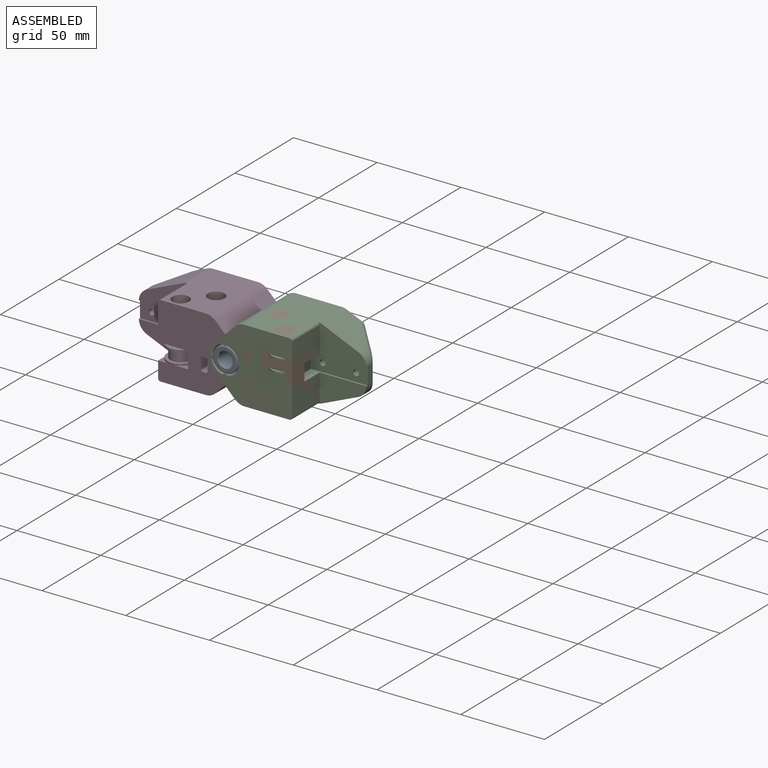
[diagram: assembled view]
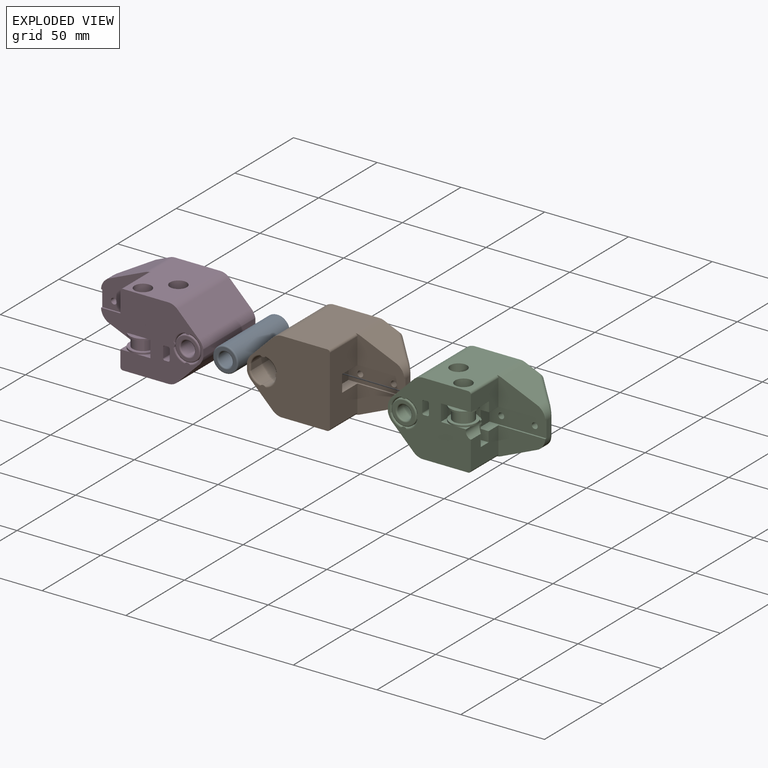
[diagram: exploded view]
GUIDED TOUR — FREECAD ASSEMBLY "y-carriages"

This assembly has 4 components, labeled P0..P3 below (a component is one placed body or linked part; the same part can appear more than once), held together by 0 modeled joints plus 6 derived contact edges. A joint is a constraint between two components; its type names the relative motion it leaves free:
  CONTACT — a derived adjacency edge — the two components touch in the source model (clearance under 2% of the assembly's diagonal); it is measured from the geometry, not a modeled constraint.
Axis/direction vectors are unit vectors and 'through' points are millimeter coordinates, both in the assembly's world frame.

MATES
  1. CONTACT "contact_0_1": P0 <-> P1, contact direction (1.000, 0.000, 0.000) through (-7.03, -21.70, 2.96) mm (derived from contact, not a modeled constraint)
  2. CONTACT "contact_0_2": P0 <-> P2, contact direction (1.000, 0.000, 0.000) through (-5.88, -22.50, -3.20) mm (derived from contact, not a modeled constraint)
  3. CONTACT "contact_0_3": P0 <-> P3, contact direction (-1.000, 0.000, 0.000) through (5.54, 22.50, -3.77) mm (derived from contact, not a modeled constraint)
  4. CONTACT "contact_1_2": P1 <-> P2, contact direction (-1.000, 0.000, 0.000) through (-1.04, -22.50, -7.79) mm (derived from contact, not a modeled constraint)
  5. CONTACT "contact_1_3": P1 <-> P3, contact direction (-1.000, 0.000, 0.000) through (-1.42, -22.50, -8.09) mm (derived from contact, not a modeled constraint)
  6. CONTACT "contact_2_3": P2 <-> P3, contact direction (-1.000, 0.000, 0.000) through (1.25, -22.26, -7.94) mm (derived from contact, not a modeled constraint)

ASSEMBLY ORDER
  1. P0 — the base component [order heuristic]
  2. P1 [order heuristic]
  3. P2 [order heuristic]
  4. P3 [order heuristic]
Order-tag legend:
  [order heuristic] — this assembly is geometrically interlocked (no collision-free removal order exists), so components are listed in mate-graph order; insertion feasibility is not verified.

Of the 4 components, 4 carry a construction recipe — the FreeCAD feature program (sketches with constraints, then the solid features that consume them) that regenerates the part from scratch, quoted from this document or from the linked companion document it references; the rest are supplied as boundary geometry only. The tour below walks the components in assembly order: each is shown spotlighted twice — in the assembled view, then in the exploded view, where a leader line traces a displaced component back to its assembled socket (components that stay in place when exploded have no leader line; saturated green if recipe-attached, orange if geometry-only; every other component desaturated gray) — followed by its recipe or geometry summary and the mates that hold it.
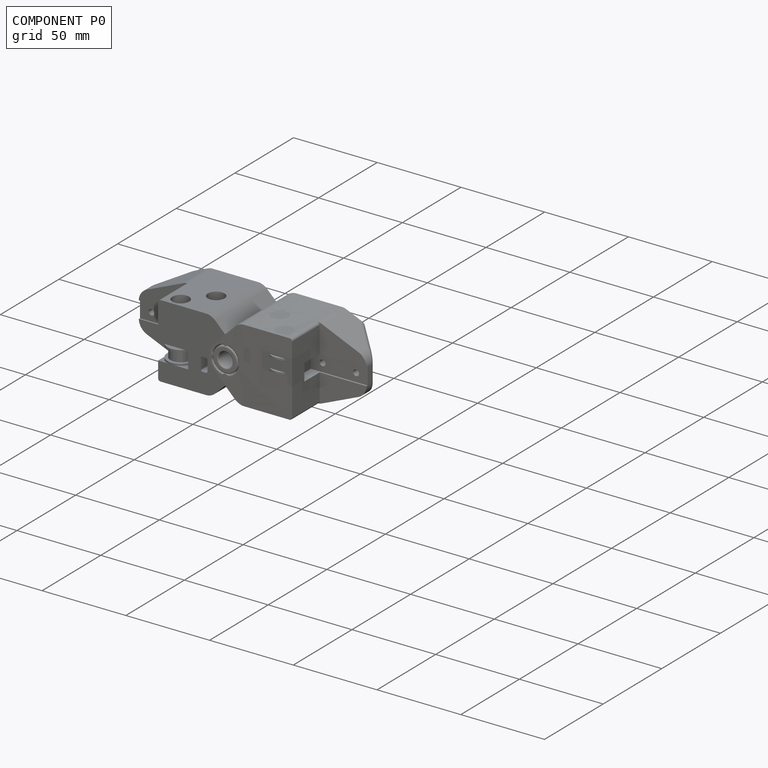
[diagram: component P0 — assembled]
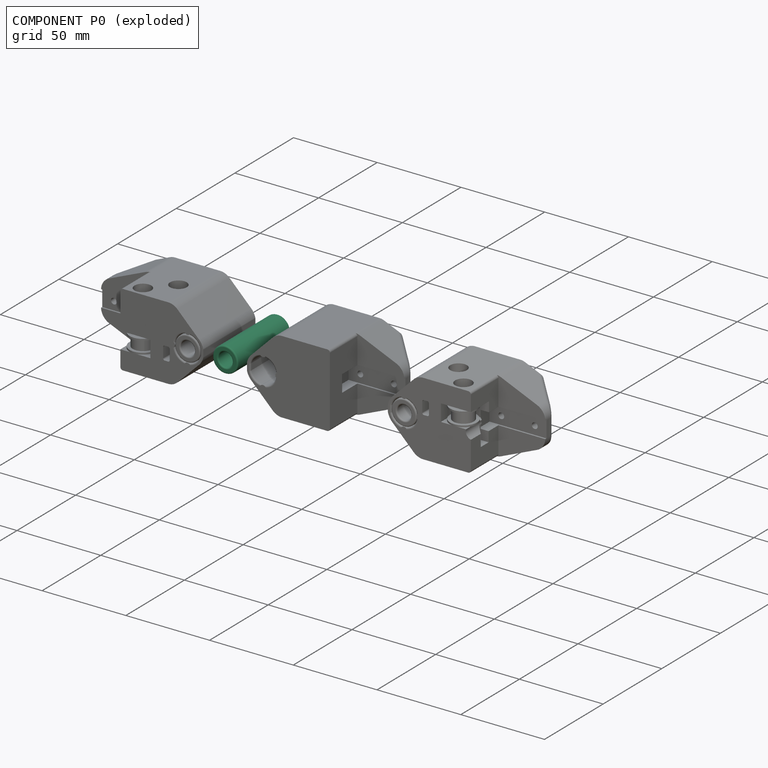
[diagram: component P0 — exploded]
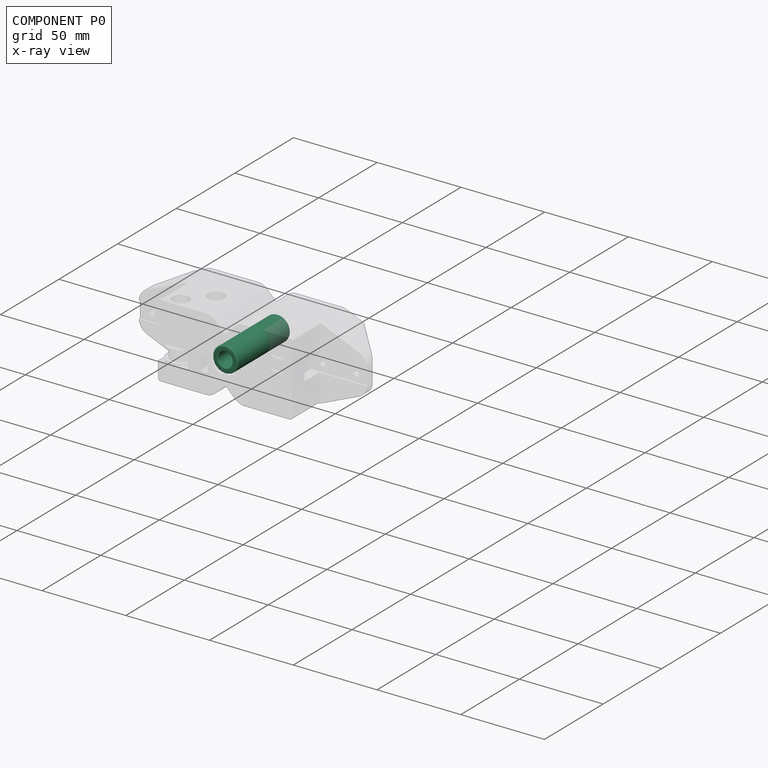
[diagram: component P0 — x-ray view]
COMPONENT P0 — recipe-attached ("lm8luu-bearing-drv", modeled in this document).
Held by: resting contact with P1 (derived edge); resting contact with P2 (derived edge); resting contact with P3 (derived edge).
Construction recipe (the document's own serialized feature program — sketch geometry with constraints, then the solid features built on it; lengths are millimeters unless a unit is written):

FEATURE [Sketcher::SketchObject] Sketch
  ArcFitTolerance = 1e-06
  AttachmentSupport = -> [XZ_Plane256]
  FullyConstrained = true
  MakeInternals = false
  MapMode = 5
  Placement = pos=(0,0,0) rot=(1,0,0;1.5708rad)
  sketch-geometry (2):
    g0: Circle CenterX=0 CenterY=0 CenterZ=0 NormalX=0 NormalY=0 NormalZ=1 AngleXU=0 Radius=4.25
    g1: Circle CenterX=0 CenterY=0 CenterZ=0 NormalX=0 NormalY=0 NormalZ=1 AngleXU=0 Radius=7.5
  constraints (4):
    c: Coincident(g0,g-1)
    c: Coincident(g1,g0)
    c: Diameter(g0) = 8.5
    c: Diameter(g1) = 15
FEATURE [PartDesign::Pad] Pad
  Direction = (0,-1,2e-16)
  Length = 45
  Length2 = 10
  Midplane = true
  Placement = pos=(0,0,0) rot=(1,0,0;1.5708rad)
  Profile = -> Sketch
  ReferenceAxis = -> Sketch [N_Axis]
  Suppressed = false
  Type = 0
FEATURE [PartDesign::Fillet] Fillet002
  Base = -> Pad [Edge2,Edge5,Edge6,Edge3]
  BaseFeature = -> Pad
  Placement = pos=(0,0,0) rot=(1,0,0;1.5708rad)
  Radius = 0.8
  SupportTransform = false
  Suppressed = false
  UseAllEdges = false
FEATURE [PartDesign::Body] Body  label="lm8luu-bearing-drv"
  AllowCompound = false
  Group = -> [Sketch,Pad,Fillet002]
  Origin = -> Origin257
  Tip = -> Fillet002
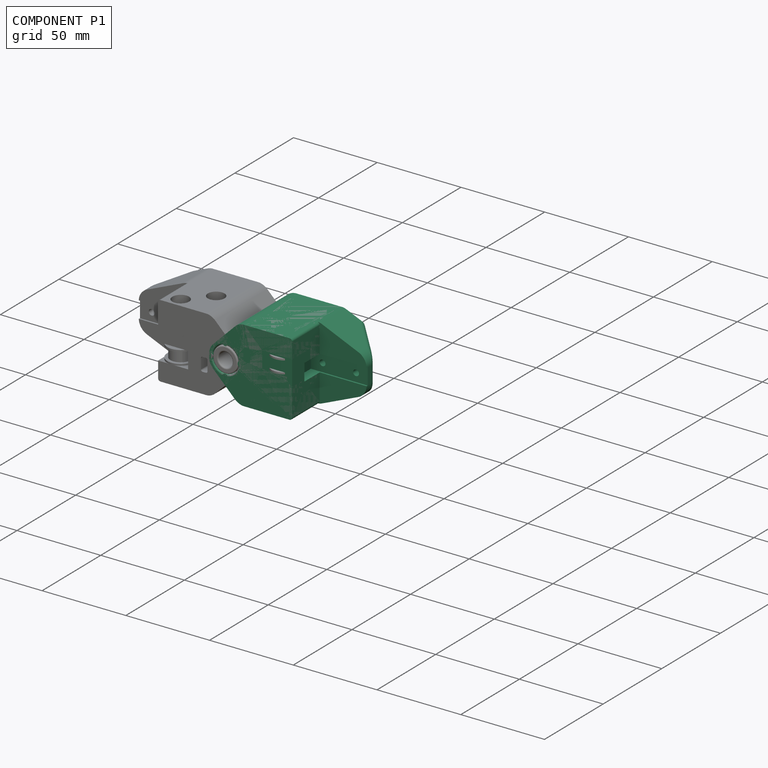
[diagram: component P1 — assembled]
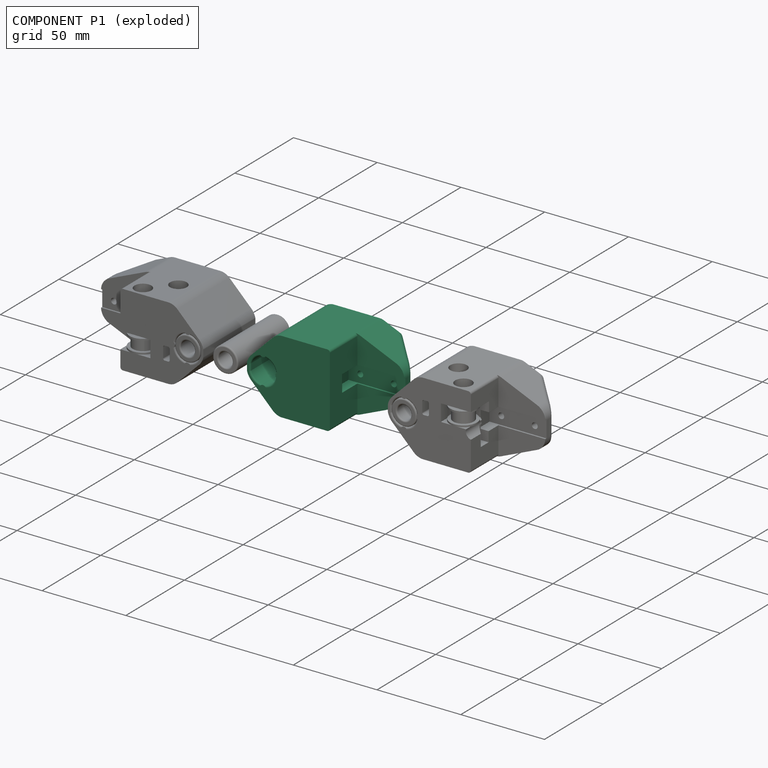
[diagram: component P1 — exploded]
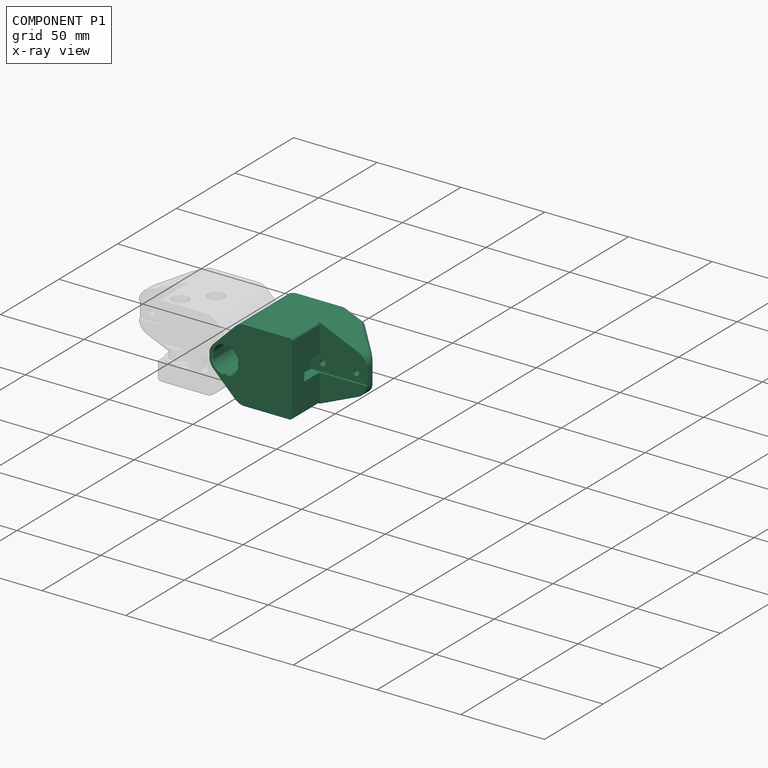
[diagram: component P1 — x-ray view]
COMPONENT P1 — recipe-attached ("y-carriage-left-drv", modeled in this document).
Held by: resting contact with P0 (derived edge); resting contact with P2 (derived edge); resting contact with P3 (derived edge).
Construction recipe (the document's own serialized feature program — sketch geometry with constraints, then the solid features built on it; lengths are millimeters unless a unit is written):

FEATURE [Sketcher::SketchObject] Sketch293
  ArcFitTolerance = 1e-06
  AttachmentSupport = -> [XY_Plane251]
  FullyConstrained = true
  MakeInternals = false
  MapMode = 5
  sketch-geometry (5):
    g0: LineSegment StartX=34 StartY=-6 StartZ=0 EndX=34 EndY=2 EndZ=0
    g1: LineSegment StartX=34 StartY=2 StartZ=0 EndX=68 EndY=2 EndZ=0
    g2: LineSegment StartX=68 StartY=2 StartZ=0 EndX=68 EndY=-20 EndZ=0
    g3: LineSegment StartX=68 StartY=-20 StartZ=0 EndX=48 EndY=-20 EndZ=0
    g4: LineSegment StartX=48 StartY=-20 StartZ=0 EndX=34 EndY=-6 EndZ=0
  constraints (15):
    c: Vertical(g0)
    c: Coincident(g0,g1)
    c: Horizontal(g1)
    c: Coincident(g1,g2)
    c: Vertical(g2)
    c: Coincident(g2,g3)
    c: Horizontal(g3)
    c: Coincident(g3,g4)
    c: Coincident(g4,g0)
    c: DistanceY(g1) = 2
    c: DistanceX(g1) = 68
    c: DistanceX(g0) = 34
    c: Angle(g4) = 2.35619
    c: DistanceY(g0,g0) = 8
    c: DistanceY(g3) = -20
FEATURE [Sketcher::SketchObject] Sketch294
  ArcFitTolerance = 1e-06
  AttachmentSupport = -> [XZ_Plane251]
  FullyConstrained = true
  MakeInternals = false
  MapMode = 5
  Placement = pos=(0,0,0) rot=(1,0,0;1.5708rad)
  sketch-geometry (40):
    g0: LineSegment StartX=11.5251 StartY=-22 StartZ=0 EndX=38.3579 EndY=-22 EndZ=0
    g1: LineSegment StartX=41.5093 StartY=-21.3532 StartZ=0 EndX=63.1514 EndY=-12.078 EndZ=0
    g2: LineSegment StartX=68 StartY=-4.72483 StartZ=0 EndX=68 EndY=4.72483 EndZ=0
    g3: LineSegment StartX=63.1514 StartY=12.078 StartZ=0 EndX=41.5093 EndY=21.3532 EndZ=0
    g4: LineSegment StartX=38.3579 StartY=22 StartZ=0 EndX=11.5251 EndY=22 EndZ=0
    g5: ArcOfCircle CenterX=0 CenterY=0 CenterZ=0 NormalX=0 NormalY=0 NormalZ=1 AngleXU=0 Radius=7.75 StartAngle=3.39628 EndAngle=4.59949
    g6: GeomPoint X=-9.5 Y=0 Z=0
    g7: GeomPoint X=0 Y=15 Z=0
    g8: ArcOfCircle CenterX=11.5251 CenterY=14 CenterZ=0 NormalX=0 NormalY=0 NormalZ=1 AngleXU=0 Radius=8 StartAngle=1.5708 EndAngle=2.35619
    g9: GeomPoint [constr] X=8.21142 Y=22 Z=0
    g10: ArcOfCircle CenterX=11.5251 CenterY=-14 CenterZ=0 NormalX=0 NormalY=0 NormalZ=1 AngleXU=0 Radius=8 StartAngle=3.92699 EndAngle=4.71239
    g11: GeomPoint [constr] X=8.21142 Y=-22 Z=0
    g12: ArcOfCircle CenterX=38.3579 CenterY=14 CenterZ=0 NormalX=0 NormalY=0 NormalZ=1 AngleXU=0 Radius=8 StartAngle=1.1659 EndAngle=1.5708
    g13: GeomPoint [constr] X=40 Y=22 Z=0
    g14: ArcOfCircle CenterX=60 CenterY=4.72483 CenterZ=0 NormalX=0 NormalY=0 NormalZ=1 AngleXU=0 Radius=8 StartAngle=0 EndAngle=1.1659
    g15: GeomPoint [constr] X=68 Y=10 Z=0
    g16: ArcOfCircle CenterX=60 CenterY=-4.72483 CenterZ=0 NormalX=0 NormalY=0 NormalZ=1 AngleXU=0 Radius=8 StartAngle=5.11728 EndAngle=6.28319
    g17: GeomPoint [constr] X=68 Y=-10 Z=0
    g18: ArcOfCircle CenterX=38.3579 CenterY=-14 CenterZ=0 NormalX=0 NormalY=0 NormalZ=1 AngleXU=0 Radius=8 StartAngle=4.71239 EndAngle=5.11728
    g19: GeomPoint [constr] X=40 Y=-22 Z=0
    g20: LineSegment StartX=-9.5 StartY=1.95256 StartZ=0 EndX=-9.5 EndY=-1.95256 EndZ=0
    g21: LineSegment StartX=-7.5 StartY=1.95256 StartZ=0 EndX=-7.5 EndY=-1.95256 EndZ=0
    g22: ArcOfCircle CenterX=-7.5 CenterY=-1.95256 CenterZ=0 NormalX=0 NormalY=0 NormalZ=1 AngleXU=0 Radius=2 StartAngle=3.14159 EndAngle=3.39628
    g23: ArcOfCircle CenterX=-7.5 CenterY=1.95256 CenterZ=0 NormalX=0 NormalY=0 NormalZ=1 AngleXU=0 Radius=2 StartAngle=2.8869 EndAngle=3.14159
    g24: ArcOfCircle CenterX=0 CenterY=0 CenterZ=0 NormalX=0 NormalY=0 NormalZ=1 AngleXU=0 Radius=9.75 StartAngle=2.35619 EndAngle=2.8869
    g25: LineSegment StartX=-6.89429 StartY=6.89429 StartZ=0 EndX=5.86827 EndY=19.6569 EndZ=0
    g26: ArcOfCircle CenterX=0 CenterY=0 CenterZ=0 NormalX=0 NormalY=0 NormalZ=1 AngleXU=0 Radius=9.75 StartAngle=3.39628 EndAngle=3.92699
    g27: LineSegment StartX=-6.89429 StartY=-6.89429 StartZ=0 EndX=5.86827 EndY=-19.6569 EndZ=0
    g28: GeomPoint X=-7.75 Y=0 Z=0
    g29: GeomPoint X=-7.5 Y=0 Z=0
    g30: ArcOfCircle CenterX=0 CenterY=9.5 CenterZ=0 NormalX=0 NormalY=0 NormalZ=1 AngleXU=0 Radius=2 StartAngle=4.26061 EndAngle=5.16417
    g31: ArcOfCircle CenterX=9.5 CenterY=0 CenterZ=0 NormalX=0 NormalY=0 NormalZ=1 AngleXU=0 Radius=2 StartAngle=2.68981 EndAngle=3.59337
    g32: ArcOfCircle CenterX=0 CenterY=-9.5 CenterZ=0 NormalX=0 NormalY=0 NormalZ=1 AngleXU=0 Radius=2 StartAngle=1.11902 EndAngle=2.02258
    g33: LineSegment [constr] StartX=9.5 StartY=0 StartZ=0 EndX=0 EndY=0 EndZ=0
    g34: LineSegment [constr] StartX=0 StartY=0 StartZ=0 EndX=0 EndY=9.5 EndZ=0
    g35: GeomPoint [constr] X=7.5 Y=0 Z=0
    g36: GeomPoint [constr] X=7.75 Y=0 Z=0
    g37: ArcOfCircle CenterX=0 CenterY=0 CenterZ=0 NormalX=0 NormalY=0 NormalZ=1 AngleXU=0 Radius=7.75 StartAngle=1.6837 EndAngle=2.8869
    g38: ArcOfCircle CenterX=0 CenterY=0 CenterZ=0 NormalX=0 NormalY=0 NormalZ=1 AngleXU=0 Radius=7.75 StartAngle=0.112903 EndAngle=1.45789
    g39: ArcOfCircle CenterX=0 CenterY=0 CenterZ=0 NormalX=0 NormalY=0 NormalZ=1 AngleXU=0 Radius=7.75 StartAngle=4.82529 EndAngle=6.17028
  constraints (96):
    c: Horizontal(g0)
    c: Horizontal(g4)
    c: Symmetric(g9,g11,g-1)
    c: Symmetric(g17,g15,g-1)
    c: Vertical(g19,g13)
    c: DistanceY(g17,g15) = 20
    c: Diameter(g5) = 15.5
    c: PointOnObject(g6,g-1)
    c: DistanceX(g6) = -9.5
    c: PointOnObject(g7,g-2)
    c: DistanceY(g7) = 15
    c: DistanceY(g9) = 22
    c: DistanceX(g19) = 40
    c: PointOnObject(g9,g4)
    c: Tangent(g4,g8) = -1.5708
    c: PointOnObject(g11,g0)
    c: Tangent(g0,g10) = -1.5708
    c: PointOnObject(g13,g3)
    c: PointOnObject(g13,g4)
    c: Tangent(g3,g12) = -1.5708
    c: Tangent(g4,g12) = -1.5708
    c: PointOnObject(g15,g2)
    c: PointOnObject(g15,g3)
    c: Tangent(g2,g14) = -1.5708
    c: Tangent(g3,g14) = -1.5708
    c: PointOnObject(g17,g1)
    c: PointOnObject(g17,g2)
    c: Tangent(g1,g16) = -1.5708
    c: Tangent(g2,g16) = -1.5708
    c: PointOnObject(g19,g0)
    c: PointOnObject(g19,g1)
    c: Tangent(g0,g18) = -1.5708
    c: Tangent(g1,g18) = -1.5708
    c: Equal(g8,g12)
    c: Equal(g12,g14)
    c: Equal(g14,g16)
    c: Equal(g16,g18)
    c: Equal(g18,g10)
    c: Radius(g10) = 8
    c: DistanceX(g19,g15) = 28
    c: Coincident(g5,g-1)
    c: Symmetric(g20,g20,g-1)
    c: PointOnObject(g6,g20)
    c: Vertical(g21)
    c: Coincident(g37,g21)
    c: Coincident(g5,g21)
    c: Coincident(g22,g5)
    c: Tangent(g22,g20) = -1.5708
    c: Coincident(g23,g37)
    c: Coincident(g23,g20)
    c: Coincident(g24,g5)
    c: Tangent(g25,g24) = 1.5708
    c: Tangent(g25,g8) = 1.5708
    c: Tangent(g24,g23) = -1.5708
    c: Coincident(g26,g5)
    c: Tangent(g27,g10) = -1.5708
    c: Tangent(g27,g26) = -1.5708
    c: Tangent(g26,g22) = -1.5708
    c: PointOnObject(g28,g-1)
    c: PointOnObject(g28,g5)
    c: PointOnObject(g29,g21)
    c: PointOnObject(g29,g-1)
    c: DistanceX(g28,g29) = 0.25
    c: Perpendicular(g27,g25)
    c: Angle(g27) = -0.785398
    c: PointOnObject(g9,g25)
    c: PointOnObject(g30,g-2)
    c: PointOnObject(g31,g-1)
    c: PointOnObject(g31,g38)
    c: Equal(g31,g30)
    c: Radius(g31) = 2
    c: PointOnObject(g32,g39)
    c: Equal(g32,g31)
    c: Symmetric(g32,g30,g-1)
    c: Coincident(g33,g31)
    c: Coincident(g33,g5)
    c: Coincident(g34,g5)
    c: Coincident(g34,g30)
    c: Equal(g34,g33)
    c: PointOnObject(g35,g31)
    c: PointOnObject(g35,g-1)
    c: PointOnObject(g36,g39)
    c: PointOnObject(g36,g-1)
    c: DistanceX(g35,g36) = 0.25
    c: Equal(g5,g37)
    c: Coincident(g38,g30)
    c: Coincident(g5,g37)
    c: Coincident(g37,g30)
    c: Equal(g5,g38)
    c: PointOnObject(g38,g31)
    c: Coincident(g5,g38)
    c: Coincident(g39,g31)
    c: Equal(g5,g39)
    c: Coincident(g5,g32)
    c: PointOnObject(g39,g32)
    c: Coincident(g5,g39)
FEATURE [PartDesign::Pad] Pad001
  Direction = (0,-1,2e-16)
  Length = 45
  Length2 = 10
  Midplane = true
  Placement = pos=(0,0,0) rot=(1,0,0;1.5708rad)
  Profile = -> Sketch294
  ReferenceAxis = -> Sketch294 [N_Axis]
  Refine = true
  Suppressed = false
  Type = 0
FEATURE [Sketcher::SketchObject] Sketch295
  ArcFitTolerance = 1e-06
  AttachmentSupport = -> [XY_Plane251]
  FullyConstrained = true
  MakeInternals = false
  MapMode = 5
  sketch-geometry (6):
    g0: LineSegment StartX=68 StartY=1 StartZ=0 EndX=40 EndY=1 EndZ=0
    g1: LineSegment StartX=40 StartY=1 StartZ=0 EndX=40 EndY=-30 EndZ=0
    g2: LineSegment StartX=40 StartY=-30 StartZ=0 EndX=68 EndY=-30 EndZ=0
    g3: LineSegment StartX=68 StartY=-30 StartZ=0 EndX=68 EndY=1 EndZ=0
    g4: GeomPoint X=160 Y=0 Z=0
    g5: GeomPoint X=35 Y=0 Z=0
  constraints (16):
    c: Coincident(g0,g1)
    c: Coincident(g1,g2)
    c: Coincident(g2,g3)
    c: Coincident(g3,g0)
    c: Horizontal(g0)
    c: Horizontal(g2)
    c: Vertical(g1)
    c: Vertical(g3)
    c: DistanceY(g2) = -30
    c: DistanceX(g0) = 40
    c: PointOnObject(g4,g-1)
    c: DistanceX(g4) = 160
    c: PointOnObject(g5,g-1)
    c: DistanceX(g5,g4) = 125
    c: DistanceY(g0) = 1
    c: DistanceX(g0,g0) = 28
FEATURE [PartDesign::Pocket] Pocket
  BaseFeature = -> Pad001
  Direction = (0,0,-1)
  Length = 5
  Length2 = 5
  Midplane = true
  Placement = pos=(0,0,0) rot=(1,0,0;1.5708rad)
  Profile = -> Sketch295
  ReferenceAxis = -> Sketch295 [N_Axis]
  Refine = true
  Suppressed = false
  Type = 1
FEATURE [PartDesign::Pocket] Pocket181
  BaseFeature = -> Pocket
  Direction = (0,0,-1)
  Length = 10
  Length2 = 5
  Midplane = true
  Placement = pos=(0,0,0) rot=(1,0,0;1.5708rad)
  Profile = -> Sketch293
  ReferenceAxis = -> Sketch293 [N_Axis]
  Refine = true
  Suppressed = false
  Type = 0
FEATURE [PartDesign::Fillet] Fillet
  Base = -> Pocket181 [Edge78,Edge62]
  BaseFeature = -> Pocket181
  Placement = pos=(0,0,0) rot=(1,0,0;1.5708rad)
  Radius = 1.5
  Refine = true
  SupportTransform = false
  Suppressed = false
  UseAllEdges = false
FEATURE [Sketcher::SketchObject] Sketch296
  ArcFitTolerance = 1e-06
  AttachmentSupport = -> [XY_Plane251]
  FullyConstrained = true
  MakeInternals = false
  MapMode = 5
  sketch-geometry (3):
    g0: LineSegment StartX=52 StartY=22.5 StartZ=0 EndX=68 EndY=22.5 EndZ=0
    g1: LineSegment StartX=68 StartY=22.5 StartZ=0 EndX=68 EndY=6.5 EndZ=0
    g2: LineSegment StartX=68 StartY=6.5 StartZ=0 EndX=52 EndY=22.5 EndZ=0
  constraints (9):
    c: Horizontal(g0)
    c: Coincident(g0,g1)
    c: Vertical(g1)
    c: Coincident(g1,g2)
    c: Coincident(g2,g0)
    c: Equal(g1,g0)
    c: DistanceX(g0) = 68
    c: DistanceY(g0) = 22.5
    c: DistanceY(g1,g1) = 16
FEATURE [PartDesign::Pocket] Pocket183
  BaseFeature = -> Fillet
  Direction = (0,0,-1)
  Length = 5
  Length2 = 5
  Midplane = true
  Placement = pos=(0,0,0) rot=(1,0,0;1.5708rad)
  Profile = -> Sketch296
  ReferenceAxis = -> Sketch296 [N_Axis]
  Refine = true
  Suppressed = false
  Type = 1
FEATURE [PartDesign::Chamfer] Chamfer002
  Angle = 45
  Base = -> Pocket183 [Edge46,Edge77,Edge69,Edge75,Edge82,Edge73]
  BaseFeature = -> Pocket183
  ChamferType = 0
  FlipDirection = false
  Placement = pos=(0,0,0) rot=(1,0,0;1.5708rad)
  Refine = true
  Size = 0.6
  Size2 = 1
  SupportTransform = false
  Suppressed = false
  UseAllEdges = false
FEATURE [PartDesign::Fillet] Fillet003
  Base = -> Chamfer002 [Edge36]
  BaseFeature = -> Chamfer002
  Placement = pos=(0,0,0) rot=(1,0,0;1.5708rad)
  Radius = 3
  Refine = true
  SupportTransform = false
  Suppressed = false
  UseAllEdges = false
FEATURE [PartDesign::Fillet] Fillet004
  Base = -> Fillet003 [Edge81,Edge79,Edge82,Edge86,Edge83]
  BaseFeature = -> Fillet003
  Placement = pos=(0,0,0) rot=(1,0,0;1.5708rad)
  Radius = 0.9
  Refine = true
  SupportTransform = false
  Suppressed = false
  UseAllEdges = false
FEATURE [Sketcher::SketchObject] Sketch297
  ArcFitTolerance = 1e-06
  AttachmentSupport = -> [XZ_Plane251]
  FullyConstrained = true
  MakeInternals = false
  MapMode = 5
  Placement = pos=(0,0,0) rot=(1,0,0;1.5708rad)
  sketch-geometry (4):
    g0: GeomPoint X=160 Y=0 Z=0
    g1: GeomPoint X=35 Y=0 Z=0
    g2: Circle CenterX=41 CenterY=0 CenterZ=0 NormalX=0 NormalY=0 NormalZ=1 AngleXU=0 Radius=1.75
    g3: Circle CenterX=61 CenterY=0 CenterZ=0 NormalX=0 NormalY=0 NormalZ=1 AngleXU=0 Radius=1.75
  constraints (10):
    c: PointOnObject(g0,g-1)
    c: DistanceX(g0) = 160
    c: PointOnObject(g1,g-1)
    c: DistanceX(g1,g0) = 125
    c: PointOnObject(g2,g-1)
    c: PointOnObject(g3,g-1)
    c: DistanceX(g1,g2) = 6
    c: DistanceX(g2,g3) = 20
    c: Equal(g2,g3)
    c: Diameter(g2) = 3.5
FEATURE [PartDesign::Pocket] Pocket187
  BaseFeature = -> Fillet004
  Direction = (0,1,-2e-16)
  Length = 7.7
  Length2 = 5
  Placement = pos=(0,0,0) rot=(1,0,0;1.5708rad)
  Profile = -> Sketch297
  ReferenceAxis = -> Sketch297 [N_Axis]
  Refine = true
  Suppressed = false
  Type = 0
FEATURE [Sketcher::SketchObject] Sketch298
  ArcFitTolerance = 1e-06
  AttachmentOffset = pos=(0,0,-8) rot=(0,0,1;0rad)
  AttachmentSupport = -> [XZ_Plane251]
  FullyConstrained = true
  MakeInternals = false
  MapMode = 5
  Placement = pos=(0,8,-1.8e-15) rot=(1,0,0;1.5708rad)
  sketch-geometry (14):
    g0: LineSegment StartX=42.5877 StartY=-2.75 StartZ=0 EndX=44.1754 EndY=4e-14 EndZ=0
    g1: LineSegment StartX=44.1754 StartY=4e-14 StartZ=0 EndX=42.5877 EndY=2.75 EndZ=0
    g2: LineSegment StartX=42.5877 StartY=2.75 StartZ=0 EndX=39.4123 EndY=2.75 EndZ=0
    g3: LineSegment StartX=39.4123 StartY=2.75 StartZ=0 EndX=37.8246 EndY=4.31e-14 EndZ=0
    g4: LineSegment StartX=37.8246 StartY=4.31e-14 StartZ=0 EndX=39.4123 EndY=-2.75 EndZ=0
    g5: LineSegment StartX=39.4123 StartY=-2.75 StartZ=0 EndX=42.5877 EndY=-2.75 EndZ=0
    g6: Circle [constr] CenterX=41 CenterY=0 CenterZ=0 NormalX=0 NormalY=0 NormalZ=1 AngleXU=0 Radius=3.17543
    g7: LineSegment StartX=62.5877 StartY=-2.75 StartZ=0 EndX=64.1754 EndY=0 EndZ=0
    g8: LineSegment StartX=64.1754 StartY=1e-16 StartZ=0 EndX=62.5877 EndY=2.75 EndZ=0
    g9: LineSegment StartX=62.5877 StartY=2.75 StartZ=0 EndX=59.4123 EndY=2.75 EndZ=0
    g10: LineSegment StartX=59.4123 StartY=2.75 StartZ=0 EndX=57.8246 EndY=0 EndZ=0
    g11: LineSegment StartX=57.8246 StartY=0 StartZ=0 EndX=59.4123 EndY=-2.75 EndZ=0
    g12: LineSegment StartX=59.4123 StartY=-2.75 StartZ=0 EndX=62.5877 EndY=-2.75 EndZ=0
    g13: Circle [constr] CenterX=61 CenterY=0 CenterZ=0 NormalX=0 NormalY=0 NormalZ=1 AngleXU=0 Radius=3.17543
  constraints (34):
    c: Coincident(g0,g1)
    c: Coincident(g1,g2)
    c: Coincident(g2,g3)
    c: Coincident(g3,g4)
    c: Coincident(g4,g5)
    c: Coincident(g5,g0)
    c: Equal(g0, g1-g5) x5
    c: PointOnObject(g0,g6)
    c: PointOnObject(g1,g6)
    c: PointOnObject(g2,g6)
    c: PointOnObject(g3,g6)
    c: PointOnObject(g4,g6)
    c: PointOnObject(g5,g6)
    c: PointOnObject(g6,g-1)
    c: Coincident(g7,g8)
    c: Coincident(g8,g9)
    c: Coincident(g9,g10)
    c: Coincident(g10,g11)
    c: Coincident(g11,g12)
    c: Coincident(g12,g7)
    c: Equal(g7, g8-g12) x5
    c: PointOnObject(g7,g13)
    c: PointOnObject(g8,g13)
    c: PointOnObject(g9,g13)
    c: PointOnObject(g10,g13)
    c: PointOnObject(g11,g13)
    c: PointOnObject(g12,g13)
    c: PointOnObject(g13,g-1)
    c: Equal(g13,g6)
    c: Horizontal(g2)
    c: Horizontal(g9)
    c: DistanceX(g6,g13) = 20
    c: DistanceX(g6) = 41
    c: DistanceY(g0,g1) = 5.5
FEATURE [PartDesign::Pocket] Pocket188
  BaseFeature = -> Pocket187
  Direction = (0,1,-2e-16)
  Length = 5
  Length2 = 5
  Placement = pos=(0,0,0) rot=(1,0,0;1.5708rad)
  Profile = -> Sketch298
  ReferenceAxis = -> Sketch298 [N_Axis]
  Refine = true
  Suppressed = false
  Type = 1
FEATURE [Sketcher::SketchObject] Sketch299
  ArcFitTolerance = 1e-06
  AttachmentOffset = pos=(0,0,41) rot=(0,0,1;0rad)
  AttachmentSupport = -> [YZ_Plane251]
  FullyConstrained = true
  MakeInternals = false
  MapMode = 5
  Placement = pos=(41,0,0) rot=(0.57735,0.57735,0.57735;2.0944rad)
  sketch-geometry (4):
    g0: LineSegment StartX=22.5 StartY=0 StartZ=0 EndX=22.5 EndY=-8 EndZ=0
    g1: LineSegment StartX=22.5 StartY=-8 StartZ=0 EndX=16.5 EndY=-8 EndZ=0
    g2: LineSegment StartX=16.5 StartY=-8 StartZ=0 EndX=8.5 EndY=0 EndZ=0
    g3: LineSegment StartX=8.5 StartY=0 StartZ=0 EndX=22.5 EndY=0 EndZ=0
  constraints (12):
    c: PointOnObject(g2,g-1)
    c: Coincident(g0,g1)
    c: Horizontal(g1)
    c: Coincident(g1,g2)
    c: Angle(g2) = 2.35619
    c: DistanceX(g0) = 22.5
    c: DistanceY(g0,g0) = 8
    c: DistanceX(g1) = 16.5
    c: Coincident(g3,g2)
    c: Coincident(g3,g0)
    c: Horizontal(g3)
    c: Vertical(g0)
FEATURE [PartDesign::Groove] Groove010
  Angle = 360
  Angle2 = 60
  Axis = (0,1,0)
  Base = (41,0,0)
  BaseFeature = -> Pocket188
  Placement = pos=(0,0,0) rot=(1,0,0;1.5708rad)
  Profile = -> Sketch299
  ReferenceAxis = -> Sketch299 [H_Axis]
  Refine = true
  Suppressed = false
  Type = 0
FEATURE [PartDesign::LinearPattern] LinearPattern
  BaseFeature = -> Groove010
  Direction = -> X_Axis252
  Length = 20
  Mode = 0
  Occurrences = 2
  Offset = 20
  Originals = -> [Groove010]
  Placement = pos=(0,0,0) rot=(1,0,0;1.5708rad)
  Refine = true
  Suppressed = false
  TransformMode = 0
FEATURE [PartDesign::Body] Body118  label="y-carriage-left-drv"
  AllowCompound = false
  Group = -> [Sketch293,Sketch294,Pad001,Sketch295,Pocket,Pocket181,Fillet,Sketch296,Pocket183,Chamfer002,Fillet003,Fillet004,Sketch297,Pocket187,Sketch298,Pocket188,Sketch299,Groove010,LinearPattern]
  Origin = -> Origin252
  Tip = -> LinearPattern
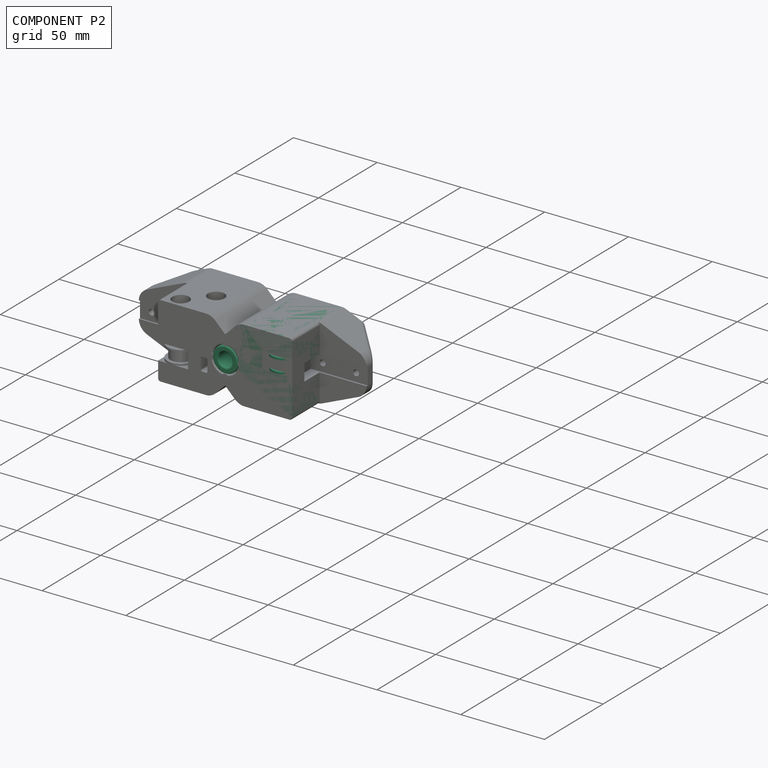
[diagram: component P2 — assembled]
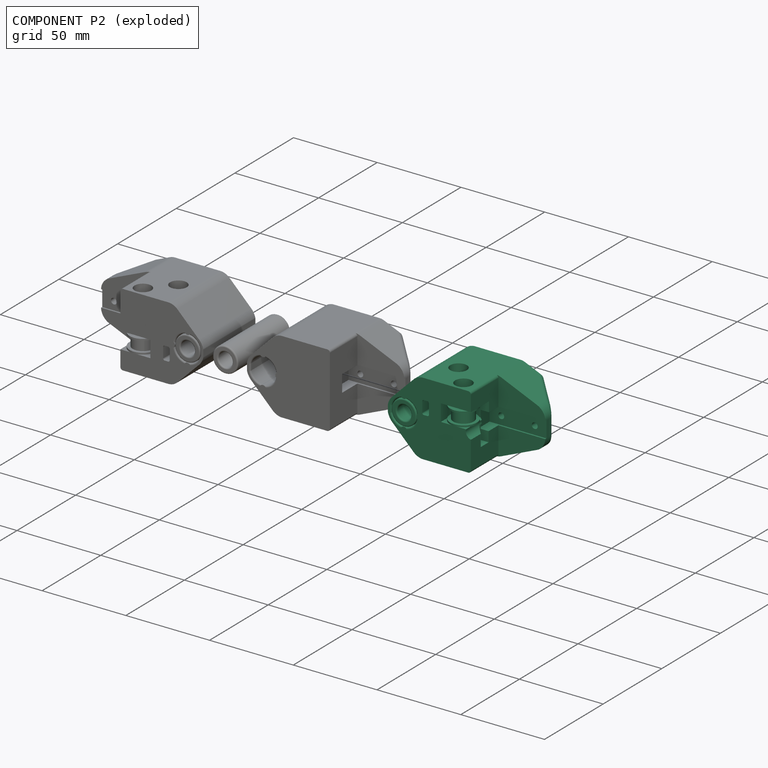
[diagram: component P2 — exploded]
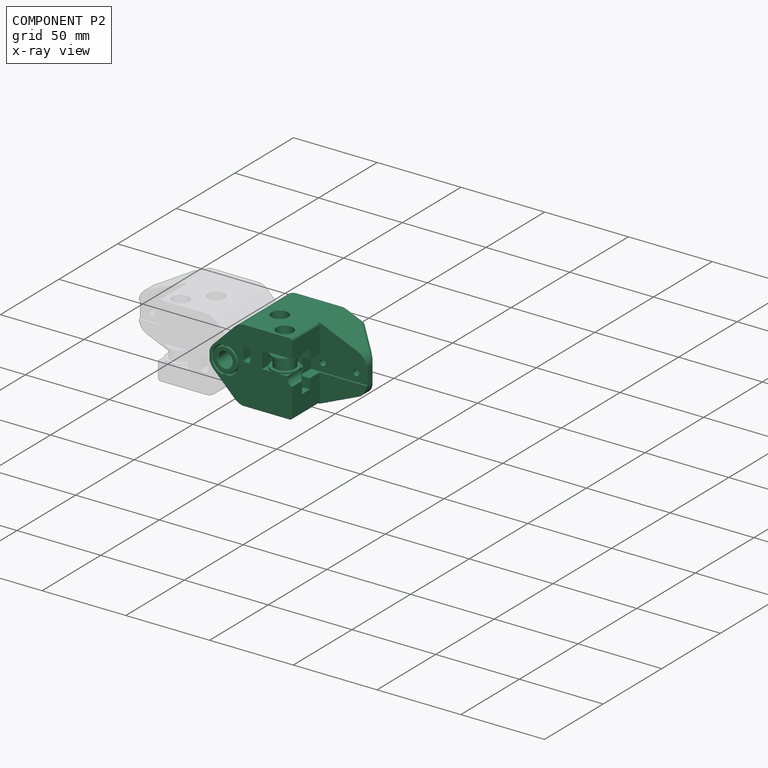
[diagram: component P2 — x-ray view]
COMPONENT P2 — recipe-attached ("main-left", modeled in this document).
Held by: resting contact with P0 (derived edge); resting contact with P1 (derived edge); resting contact with P3 (derived edge).
Construction recipe (the document's own serialized feature program — sketch geometry with constraints, then the solid features built on it; lengths are millimeters unless a unit is written):

FEATURE [Sketcher::SketchObject] Sketch242
  ArcFitTolerance = 0
  AttachmentOffset = pos=(0,0,16) rot=(0,0,1;0rad)
  AttachmentSupport = -> [XZ_Plane253]
  FullyConstrained = true
  MakeInternals = false
  MapMode = 5
  Placement = pos=(0,-16,3.6e-15) rot=(1,0,0;1.5708rad)
  expr: .AttachmentOffset.Base.z = -Spreadsheet.idler_pos_2
  expr: Constraints[18] = Spreadsheet.inner_idler_pos_x
  expr: Constraints[25] = Spreadsheet.belt_offset
  sketch-geometry (10):
    g0: GeomPoint [constr] X=31.08 Y=1 Z=0
    g1: GeomPoint [constr] X=31.08 Y=6 Z=0
    g2: LineSegment StartX=31.08 StartY=1 StartZ=0 EndX=31.08 EndY=1.75 EndZ=0
    g3: LineSegment StartX=31.08 StartY=1.75 StartZ=0 EndX=35.08 EndY=1.75 EndZ=0
    g4: LineSegment StartX=35.08 StartY=1.75 StartZ=0 EndX=35.83 EndY=1 EndZ=0
    g5: LineSegment StartX=35.83 StartY=1 StartZ=0 EndX=31.08 EndY=1 EndZ=0
    g6: LineSegment StartX=31.08 StartY=11 StartZ=0 EndX=31.08 EndY=10.25 EndZ=0
    g7: LineSegment StartX=31.08 StartY=10.25 StartZ=0 EndX=35.08 EndY=10.25 EndZ=0
    g8: LineSegment StartX=35.08 StartY=10.25 StartZ=0 EndX=35.83 EndY=11 EndZ=0
    g9: LineSegment StartX=35.83 StartY=11 StartZ=0 EndX=31.08 EndY=11 EndZ=0
  constraints (26):
    c: Vertical(g1,g0)
    c: Coincident(g2,g0)
    c: Vertical(g2)
    c: Coincident(g2,g3)
    c: Horizontal(g3)
    c: Coincident(g3,g4)
    c: Coincident(g4,g5)
    c: Coincident(g5,g2)
    c: Horizontal(g5)
    c: Coincident(g6,g7)
    c: Horizontal(g7)
    c: Coincident(g7,g8)
    c: Coincident(g8,g9)
    c: Coincident(g9,g6)
    c: Vertical(g6)
    c: Horizontal(g9)
    c: Symmetric(g2,g6,g1)
    c: Equal(g2,g6)
    c: DistanceX(g1) = 31.08
    c: DistanceY(g2,g6) = 10
    c: DistanceX(g3,g3) = 4
    c: Angle(g4) = -0.785398
    c: Perpendicular(g4,g8)
    c: Equal(g9,g5)
    c: DistanceY(g2,g6) = 8.5
    c: DistanceY(g1) = 6
FEATURE [Sketcher::SketchObject] Sketch243
  ArcFitTolerance = 0
  AttachmentOffset = pos=(0,0,6) rot=(0,0,1;0rad)
  AttachmentSupport = -> [XY_Plane253]
  FullyConstrained = true
  MakeInternals = false
  MapMode = 5
  Placement = pos=(0,0,6) rot=(0,0,1;0rad)
  expr: .AttachmentOffset.Base.z = Spreadsheet.belt_offset
  expr: Constraints[12] = Spreadsheet.idler_pos_2
  expr: Constraints[13] = Spreadsheet.inner_idler_pos_x
  sketch-geometry (5):
    g0: ArcOfCircle CenterX=31.08 CenterY=-16 CenterZ=0 NormalX=0 NormalY=0 NormalZ=1 AngleXU=0 Radius=9 StartAngle=1.5708 EndAngle=3.14159
    g1: LineSegment StartX=22.08 StartY=-16 StartZ=0 EndX=22.08 EndY=-30 EndZ=0
    g2: LineSegment StartX=22.08 StartY=-30 StartZ=0 EndX=40.08 EndY=-30 EndZ=0
    g3: LineSegment StartX=40.08 StartY=-30 StartZ=0 EndX=40.08 EndY=-7 EndZ=0
    g4: LineSegment StartX=40.08 StartY=-7 StartZ=0 EndX=31.08 EndY=-7 EndZ=0
  constraints (14):
    c: Diameter(g0) = 18
    c: Vertical(g1)
    c: Coincident(g2,g1)
    c: Horizontal(g2)
    c: Coincident(g3,g2)
    c: Vertical(g3)
    c: Coincident(g4,g3)
    c: Horizontal(g4)
    c: Tangent(g0,g1) = -1.5708
    c: Tangent(g0,g4) = -1.5708
    c: Tangent(g3,g0)
    c: DistanceY(g1) = -30
    c: DistanceY(g0) = -16
    c: DistanceX(g0) = 31.08
FEATURE [Sketcher::SketchObject] Sketch244
  ArcFitTolerance = 0
  AttachmentOffset = pos=(0,0,-6) rot=(0,0,1;0rad)
  AttachmentSupport = -> [XY_Plane253]
  FullyConstrained = true
  MakeInternals = false
  MapMode = 5
  Placement = pos=(0,0,-6) rot=(0,0,1;0rad)
  expr: .AttachmentOffset.Base.z = -Spreadsheet.belt_offset
  expr: Constraints[24] = Spreadsheet.idler_pos_2
  expr: Constraints[30] = Spreadsheet.idler_pos_1
  sketch-geometry (14):
    g0: ArcOfCircle CenterX=19 CenterY=-3 CenterZ=0 NormalX=0 NormalY=0 NormalZ=1 AngleXU=0 Radius=9 StartAngle=3.14159 EndAngle=5.25009
    g1: LineSegment StartX=10 StartY=-3 StartZ=0 EndX=10 EndY=30 EndZ=0
    g2: LineSegment StartX=10 StartY=30 StartZ=0 EndX=28 EndY=30 EndZ=0
    g3: LineSegment StartX=28 StartY=30 StartZ=0 EndX=28 EndY=-3 EndZ=0
    g4: LineSegment StartX=23.6095 StartY=-10.73 StartZ=0 EndX=36.73 EndY=-10.73 EndZ=0
    g5: LineSegment StartX=40 StartY=-7.35 StartZ=0 EndX=26.8789 EndY=-7.35 EndZ=0
    g6: ArcOfCircle CenterX=19 CenterY=-3 CenterZ=0 NormalX=0 NormalY=0 NormalZ=1 AngleXU=0 Radius=9 StartAngle=5.77873 EndAngle=6.28319
    g7: GeomPoint [constr] X=19 Y=-9.1 Z=0
    g8: Circle [constr] CenterX=19 CenterY=-3 CenterZ=0 NormalX=0 NormalY=0 NormalZ=1 AngleXU=0 Radius=6.1
    g9: GeomPoint X=31.08 Y=-16 Z=0
    g10: Circle [constr] CenterX=31.08 CenterY=-16 CenterZ=0 NormalX=0 NormalY=0 NormalZ=1 AngleXU=0 Radius=6.1
    g11: GeomPoint [constr] X=31.08 Y=-9.9 Z=0
    g12: LineSegment StartX=36.73 StartY=-10.73 StartZ=0 EndX=40 EndY=-14 EndZ=0
    g13: LineSegment StartX=40 StartY=-14 StartZ=0 EndX=40 EndY=-7.35 EndZ=0
  constraints (37):
    c: Diameter(g0) = 18
    c: Vertical(g1)
    c: Coincident(g2,g1)
    c: Horizontal(g2)
    c: Coincident(g3,g2)
    c: Vertical(g3)
    c: DistanceY(g2) = 30
    c: Tangent(g0,g1) = 1.5708
    c: Horizontal(g4)
    c: Horizontal(g5)
    c: Equal(g0,g6)
    c: Coincident(g0,g4)
    c: Coincident(g6,g5)
    c: Coincident(g0,g6)
    c: Tangent(g6,g3) = 1.5708
    c: DistanceX(g5) = 40
    c: Vertical(g7,g0)
    c: DistanceY(g0,g7) = 1.63
    c: DistanceY(g7,g5) = 1.75
    c: Coincident(g8,g0)
    c: Diameter(g8) = 12.2
    c: PointOnObject(g7,g8)
    c: DistanceX(g0) = 19
    c: DistanceX(g9) = 31.08
    c: DistanceY(g9) = -16
    c: Coincident(g10,g9)
    c: Equal(g10,g8)
    c: PointOnObject(g11,g10)
    c: Vertical(g11,g9)
    c: DistanceY(g11,g7) = 0.8
    c: DistanceY(g0) = -3
    c: Coincident(g4,g12)
    c: Coincident(g12,g13)
    c: Coincident(g13,g5)
    c: Vertical(g13)
    c: Angle(g12) = -0.785398
    c: DistanceY(g12) = -14
FEATURE [Sketcher::SketchObject] Sketch245
  ArcFitTolerance = 0
  AttachmentOffset = pos=(0,0,16) rot=(0,0,1;0rad)
  AttachmentSupport = -> [XZ_Plane253]
  FullyConstrained = true
  MakeInternals = false
  MapMode = 5
  Placement = pos=(0,-16,3.6e-15) rot=(1,0,0;1.5708rad)
  expr: .AttachmentOffset.Base.z = -Spreadsheet.idler_pos_2
  expr: Constraints[17] = Spreadsheet.inner_idler_pos_x
  sketch-geometry (6):
    g0: LineSegment StartX=36.08 StartY=13.5 StartZ=0 EndX=36.08 EndY=22 EndZ=0
    g1: LineSegment StartX=36.08 StartY=22 StartZ=0 EndX=31.08 EndY=22 EndZ=0
    g2: LineSegment StartX=31.08 StartY=22 StartZ=0 EndX=31.08 EndY=-7 EndZ=0
    g3: LineSegment StartX=31.08 StartY=-7 StartZ=0 EndX=33.63 EndY=-7 EndZ=0
    g4: LineSegment StartX=33.63 StartY=-7 StartZ=0 EndX=33.63 EndY=13.5 EndZ=0
    g5: LineSegment StartX=33.63 StartY=13.5 StartZ=0 EndX=36.08 EndY=13.5 EndZ=0
  constraints (18):
    c: Vertical(g0)
    c: Coincident(g0,g1)
    c: Horizontal(g1)
    c: Coincident(g1,g2)
    c: Vertical(g2)
    c: Coincident(g2,g3)
    c: Horizontal(g3)
    c: Coincident(g3,g4)
    c: Coincident(g4,g5)
    c: Coincident(g5,g0)
    c: Horizontal(g5)
    c: DistanceY(g4,g4) = 20.5
    c: DistanceX(g5,g5) = 2.45
    c: DistanceX(g1,g1) = 5
    c: DistanceY(g4) = 13.5
    c: Vertical(g4)
    c: DistanceY(g0) = 22
    c: DistanceX(g1) = 31.08
FEATURE [Sketcher::SketchObject] Sketch246
  ArcFitTolerance = 0
  AttachmentOffset = pos=(0,0,3) rot=(0,0,1;0rad)
  AttachmentSupport = -> [XZ_Plane253]
  FullyConstrained = true
  MakeInternals = false
  MapMode = 5
  Placement = pos=(0,-3,7e-16) rot=(1,0,0;1.5708rad)
  expr: .AttachmentOffset.Base.z = -Spreadsheet.idler_pos_1
  sketch-geometry (6):
    g0: LineSegment StartX=19 StartY=-13 StartZ=0 EndX=19 EndY=22 EndZ=0
    g1: LineSegment StartX=19 StartY=22 StartZ=0 EndX=14 EndY=22 EndZ=0
    g2: LineSegment StartX=14 StartY=22 StartZ=0 EndX=14 EndY=8 EndZ=0
    g3: LineSegment StartX=14 StartY=8 StartZ=0 EndX=16.55 EndY=8 EndZ=0
    g4: LineSegment StartX=16.55 StartY=8 StartZ=0 EndX=16.55 EndY=-13 EndZ=0
    g5: LineSegment StartX=16.55 StartY=-13 StartZ=0 EndX=19 EndY=-13 EndZ=0
  constraints (18):
    c: Vertical(g0)
    c: Coincident(g0,g1)
    c: Horizontal(g1)
    c: Coincident(g1,g2)
    c: Vertical(g2)
    c: Coincident(g2,g3)
    c: Horizontal(g3)
    c: Coincident(g3,g4)
    c: Vertical(g4)
    c: Coincident(g4,g5)
    c: Coincident(g5,g0)
    c: Horizontal(g5)
    c: DistanceX(g5,g5) = 2.45
    c: DistanceX(g0) = 19
    c: DistanceX(g1,g1) = 5
    c: DistanceY(g4) = -13
    c: DistanceY(g4,g4) = 21
    c: DistanceY(g0) = 22
FEATURE [Sketcher::SketchObject] Sketch247
  ArcFitTolerance = 0
  AttachmentOffset = pos=(0,0,3) rot=(0,0,1;0rad)
  AttachmentSupport = -> [XZ_Plane253]
  FullyConstrained = true
  MakeInternals = false
  MapMode = 5
  Placement = pos=(0,-3,7e-16) rot=(1,0,0;1.5708rad)
  expr: .AttachmentOffset.Base.z = -Spreadsheet.idler_pos_1
  expr: Constraints[1] = -Spreadsheet.belt_offset
  sketch-geometry (9):
    g0: GeomPoint [constr] X=19 Y=-6 Z=0
    g1: LineSegment StartX=19 StartY=-1 StartZ=0 EndX=19 EndY=-1.75 EndZ=0
    g2: LineSegment StartX=19 StartY=-1.75 StartZ=0 EndX=23 EndY=-1.75 EndZ=0
    g3: LineSegment StartX=23 StartY=-1.75 StartZ=0 EndX=23.75 EndY=-1 EndZ=0
    g4: LineSegment StartX=23.75 StartY=-1 StartZ=0 EndX=19 EndY=-1 EndZ=0
    g5: LineSegment StartX=19 StartY=-11 StartZ=0 EndX=19 EndY=-10.25 EndZ=0
    g6: LineSegment StartX=19 StartY=-10.25 StartZ=0 EndX=23 EndY=-10.25 EndZ=0
    g7: LineSegment StartX=23 StartY=-10.25 StartZ=0 EndX=23.75 EndY=-11 EndZ=0
    g8: LineSegment StartX=23.75 StartY=-11 StartZ=0 EndX=19 EndY=-11 EndZ=0
  constraints (25):
    c: DistanceX(g0) = 19
    c: DistanceY(g0) = -6
    c: Vertical(g1)
    c: Coincident(g1,g2)
    c: Horizontal(g2)
    c: Coincident(g2,g3)
    c: Coincident(g3,g4)
    c: Coincident(g4,g1)
    c: Horizontal(g4)
    c: Vertical(g5)
    c: Coincident(g5,g6)
    c: Horizontal(g6)
    c: Coincident(g6,g7)
    c: Coincident(g7,g8)
    c: Coincident(g8,g5)
    c: Horizontal(g8)
    c: Symmetric(g5,g1,g0)
    c: Vertical(g5,g1)
    c: Angle(g7) = -0.785398
    c: DistanceX(g6,g6) = 4
    c: Equal(g1,g5)
    c: Perpendicular(g7,g3)
    c: Equal(g2,g6)
    c: DistanceY(g5,g1) = 10
    c: DistanceY(g5,g1) = 8.5
FEATURE [Sketcher::SketchObject] Sketch289
  ArcFitTolerance = 0
  AttachmentSupport = -> [XZ_Plane253]
  FullyConstrained = true
  MakeInternals = false
  MapMode = 5
  Placement = pos=(0,0,0) rot=(1,0,0;1.5708rad)
  expr: Constraints[26] = Spreadsheet.belt_offset
  sketch-geometry (13):
    g0: LineSegment StartX=11 StartY=9 StartZ=0 EndX=11 EndY=3 EndZ=0
    g1: LineSegment StartX=12 StartY=2 StartZ=0 EndX=14 EndY=2 EndZ=0
    g2: LineSegment StartX=15 StartY=3 StartZ=0 EndX=15 EndY=9 EndZ=0
    g3: LineSegment StartX=14 StartY=10 StartZ=0 EndX=12 EndY=10 EndZ=0
    g4: ArcOfCircle CenterX=14 CenterY=9 CenterZ=0 NormalX=0 NormalY=0 NormalZ=1 AngleXU=0 Radius=1 StartAngle=-9e-16 EndAngle=1.5708
    g5: GeomPoint [constr] X=15 Y=10 Z=0
    g6: ArcOfCircle CenterX=14 CenterY=3 CenterZ=0 NormalX=0 NormalY=0 NormalZ=1 AngleXU=0 Radius=1 StartAngle=4.71239 EndAngle=6.28319
    g7: GeomPoint [constr] X=15 Y=2 Z=0
    g8: ArcOfCircle CenterX=12 CenterY=3 CenterZ=0 NormalX=0 NormalY=0 NormalZ=1 AngleXU=0 Radius=1 StartAngle=3.14159 EndAngle=4.71239
    g9: GeomPoint [constr] X=11 Y=2 Z=0
    g10: ArcOfCircle CenterX=12 CenterY=9 CenterZ=0 NormalX=0 NormalY=0 NormalZ=1 AngleXU=0 Radius=1 StartAngle=1.5708 EndAngle=3.14159
    g11: GeomPoint [constr] X=11 Y=10 Z=0
    g12: GeomPoint X=13 Y=6 Z=0
  constraints (29):
    c: Vertical(g0)
    c: Vertical(g2)
    c: Horizontal(g1)
    c: Horizontal(g3)
    c: PointOnObject(g5,g2)
    c: PointOnObject(g5,g3)
    c: Tangent(g2,g4) = -1.5708
    c: Tangent(g3,g4) = -1.5708
    c: PointOnObject(g7,g1)
    c: PointOnObject(g7,g2)
    c: Tangent(g1,g6) = -1.5708
    c: Tangent(g2,g6) = -1.5708
    c: PointOnObject(g9,g0)
    c: PointOnObject(g9,g1)
    c: Tangent(g0,g8) = -1.5708
    c: Tangent(g1,g8) = -1.5708
    c: PointOnObject(g11,g0)
    c: PointOnObject(g11,g3)
    c: Tangent(g0,g10) = -1.5708
    c: Tangent(g3,g10) = -1.5708
    c: Symmetric(g5,g9,g12)
    c: Equal(g10,g8)
    c: Equal(g8,g6)
    c: Radius(g10) = 1
    c: Equal(g4,g10)
    c: DistanceX(g12) = 13
    c: DistanceY(g12) = 6
    c: DistanceY(g2,g2) = 6
    c: DistanceX(g3,g3) = 2
FEATURE [PartDesign::FeatureBase] Clone068
  BaseFeature = -> Body118
  Suppressed = false
FEATURE [PartDesign::Pocket] Pocket148
  BaseFeature = -> Clone068
  Direction = (0,0,-1)
  Length = 10
  Length2 = 5
  Midplane = true
  Profile = -> Sketch243
  ReferenceAxis = -> Sketch243 [N_Axis]
  Suppressed = false
  Type = 0
FEATURE [PartDesign::Pocket] Pocket149
  BaseFeature = -> Pocket148
  Direction = (0,0,-1)
  Length = 10
  Length2 = 5
  Midplane = true
  Profile = -> Sketch244
  ReferenceAxis = -> Sketch244 [N_Axis]
  Refine = true
  Suppressed = false
  Type = 0
FEATURE [PartDesign::Revolution] Revolution017
  Angle = 360
  Angle2 = 60
  Axis = (0,2e-16,1)
  Base = (31.08,-16,1)
  BaseFeature = -> Pocket149
  Profile = -> Sketch242
  ReferenceAxis = -> Sketch242 [Edge1]
  Reversed = true
  Suppressed = false
  Type = 0
FEATURE [PartDesign::Revolution] Revolution018
  Angle = 360
  Angle2 = 60
  Axis = (0,-2e-16,-1)
  Base = (19,-3,-1)
  BaseFeature = -> Revolution017
  Profile = -> Sketch247
  ReferenceAxis = -> Sketch247 [Edge1]
  Reversed = true
  Suppressed = false
  Type = 0
FEATURE [PartDesign::Groove] Groove007
  Angle = 360
  Angle2 = 60
  Axis = (0,-2e-16,-1)
  Base = (31.08,-16,22)
  BaseFeature = -> Revolution018
  Profile = -> Sketch245
  ReferenceAxis = -> Sketch245 [Edge3]
  Suppressed = false
  Type = 0
FEATURE [PartDesign::Groove] Groove
  Angle = 360
  Angle2 = 60
  Axis = (0,2e-16,1)
  Base = (19,-3,-13)
  BaseFeature = -> Groove007
  Profile = -> Sketch246
  ReferenceAxis = -> Sketch246 [Edge1]
  Refine = true
  Suppressed = false
  Type = 0
FEATURE [PartDesign::Pocket] Pocket182
  BaseFeature = -> Groove
  Direction = (0,1,-2e-16)
  Length = 5
  Length2 = 5
  Midplane = true
  Profile = -> Sketch289
  ReferenceAxis = -> Sketch289 [N_Axis]
  Refine = true
  Suppressed = false
  Type = 1
FEATURE [Sketcher::SketchObject] Sketch300
  ArcFitTolerance = 1e-06
  AttachmentSupport = -> [XZ_Plane253]
  FullyConstrained = true
  MakeInternals = false
  MapMode = 5
  Placement = pos=(0,0,0) rot=(1,0,0;1.5708rad)
  sketch-geometry (1):
    g0: Circle CenterX=41 CenterY=0 CenterZ=0 NormalX=0 NormalY=0 NormalZ=1 AngleXU=0 Radius=4
  constraints (3):
    c: PointOnObject(g0,g-1)
    c: DistanceX(g0) = 41
    c: Radius(g0) = 4
FEATURE [PartDesign::Pocket] Pocket189
  BaseFeature = -> Pocket182
  Direction = (0,1,-2e-16)
  Length = 5
  Length2 = 5
  Profile = -> Sketch300
  ReferenceAxis = -> Sketch300 [N_Axis]
  Refine = true
  Reversed = true
  Suppressed = false
  Type = 1
FEATURE [PartDesign::Chamfer] Chamfer
  Angle = 45
  Base = -> Pocket189 [Edge60]
  BaseFeature = -> Pocket189
  ChamferType = 0
  FlipDirection = false
  Refine = true
  Size = 0.75
  Size2 = 1
  SupportTransform = false
  Suppressed = false
  UseAllEdges = false
FEATURE [PartDesign::Body] Body120  label="y-carriage-left"
  AllowCompound = false
  Group = -> [Clone068,Sketch242,Sketch243,Sketch244,Sketch245,Sketch246,Sketch247,Pocket148,Pocket149,Revolution017,Revolution018,Groove007,Sketch289,Groove,Pocket182,Sketch300,Pocket189,Chamfer]
  Origin = -> Origin254
  Tip = -> Chamfer
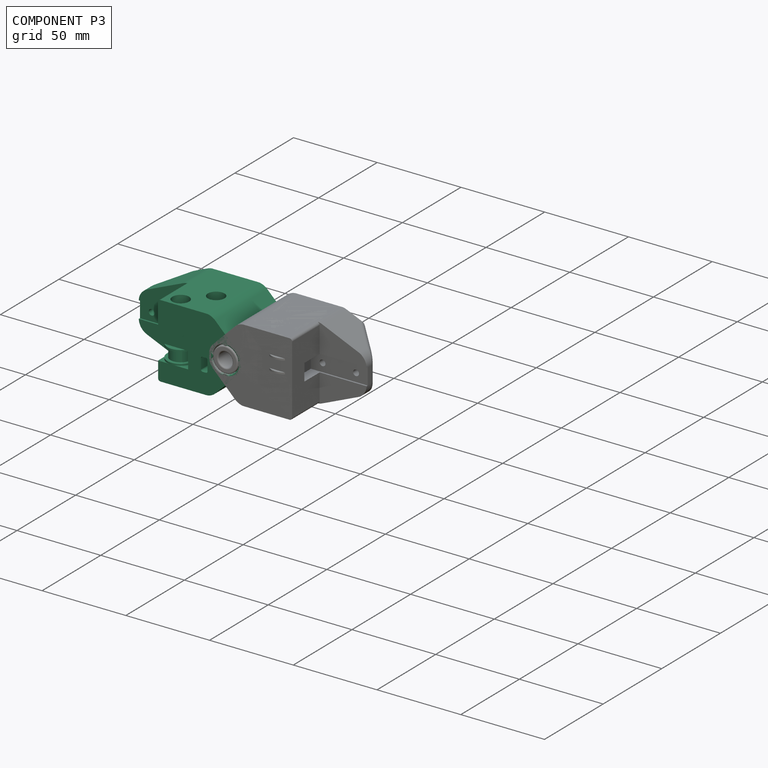
[diagram: component P3 — assembled]
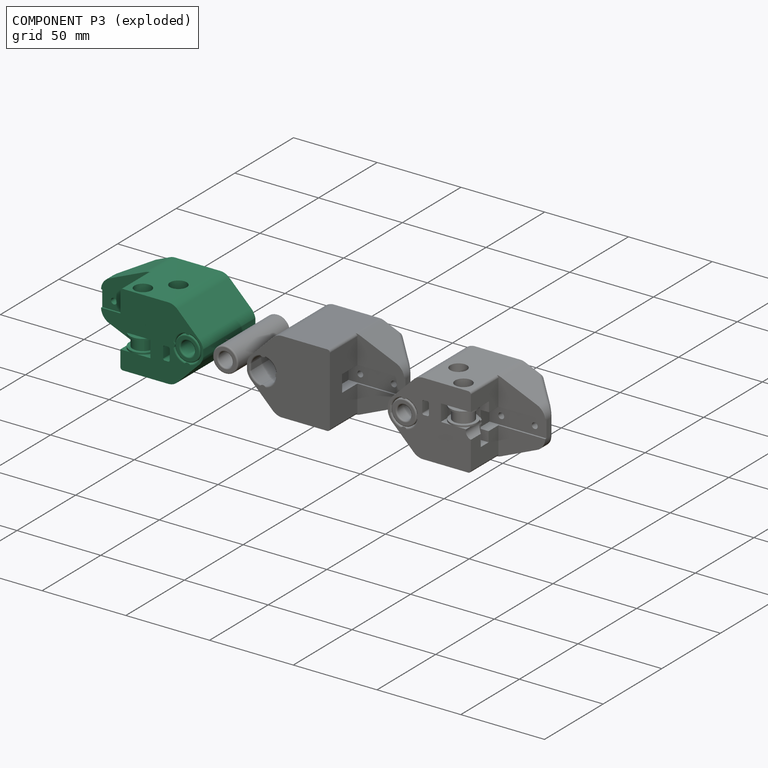
[diagram: component P3 — exploded]
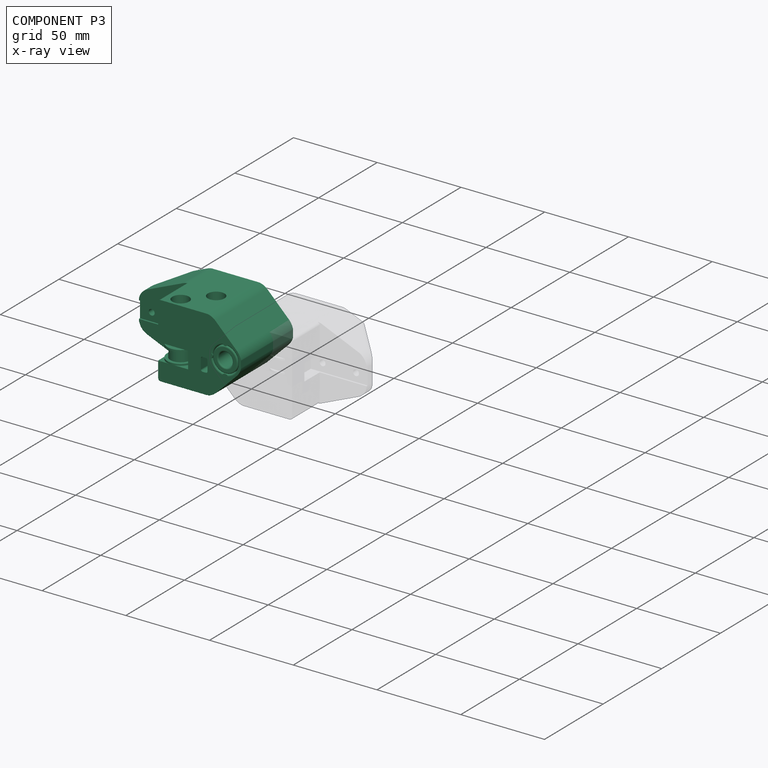
[diagram: component P3 — x-ray view]
COMPONENT P3 — recipe-attached ("main-right", modeled in this document).
Held by: resting contact with P0 (derived edge); resting contact with P1 (derived edge); resting contact with P2 (derived edge).
Construction recipe (the document's own serialized feature program — sketch geometry with constraints, then the solid features built on it; lengths are millimeters unless a unit is written):

FEATURE [Sketcher::SketchObject] Sketch248
  ArcFitTolerance = 0
  AttachmentOffset = pos=(0,0,16) rot=(0,0,1;0rad)
  AttachmentSupport = -> [XZ_Plane254]
  FullyConstrained = true
  MakeInternals = false
  MapMode = 5
  Placement = pos=(0,-16,3.6e-15) rot=(1,0,0;1.5708rad)
  expr: .AttachmentOffset.Base.z = -Spreadsheet.idler_pos_2
  expr: Constraints[17] = -Spreadsheet.belt_offset
  expr: Constraints[18] = -Spreadsheet.inner_idler_pos_x
  sketch-geometry (10):
    g0: GeomPoint [constr] X=-31.08 Y=-11 Z=0
    g1: GeomPoint [constr] X=-31.08 Y=-6 Z=0
    g2: LineSegment StartX=-31.08 StartY=-11 StartZ=0 EndX=-31.08 EndY=-10.25 EndZ=0
    g3: LineSegment StartX=-31.08 StartY=-10.25 StartZ=0 EndX=-27.08 EndY=-10.25 EndZ=0
    g4: LineSegment StartX=-27.08 StartY=-10.25 StartZ=0 EndX=-26.33 EndY=-11 EndZ=0
    g5: LineSegment StartX=-26.33 StartY=-11 StartZ=0 EndX=-31.08 EndY=-11 EndZ=0
    g6: LineSegment StartX=-31.08 StartY=-1.75 StartZ=0 EndX=-31.08 EndY=-1 EndZ=0
    g7: LineSegment StartX=-31.08 StartY=-1 StartZ=0 EndX=-26.33 EndY=-1 EndZ=0
    g8: LineSegment StartX=-26.33 StartY=-1 StartZ=0 EndX=-27.08 EndY=-1.75 EndZ=0
    g9: LineSegment StartX=-27.08 StartY=-1.75 StartZ=0 EndX=-31.08 EndY=-1.75 EndZ=0
  constraints (26):
    c: Vertical(g1,g0)
    c: Coincident(g2,g0)
    c: Vertical(g2)
    c: Coincident(g2,g3)
    c: Horizontal(g3)
    c: Coincident(g3,g4)
    c: Coincident(g4,g5)
    c: Coincident(g5,g2)
    c: Horizontal(g5)
    c: Coincident(g6,g7)
    c: Horizontal(g7)
    c: Coincident(g7,g8)
    c: Coincident(g8,g9)
    c: Coincident(g9,g6)
    c: Vertical(g6)
    c: Horizontal(g9)
    c: Equal(g2,g6)
    c: DistanceY(g-1,g1) = -6
    c: DistanceX(g1) = -31.08
    c: DistanceX(g3,g3) = 4
    c: Angle(g4) = -0.785398
    c: Perpendicular(g4,g8)
    c: Symmetric(g6,g2,g1)
    c: DistanceY(g2,g6) = 8.5
    c: DistanceY(g2,g6) = 10
    c: Vertical(g8,g3)
FEATURE [Sketcher::SketchObject] Sketch249
  ArcFitTolerance = 0
  AttachmentOffset = pos=(0,0,-6) rot=(0,0,1;0rad)
  AttachmentSupport = -> [XY_Plane254]
  FullyConstrained = true
  MakeInternals = false
  MapMode = 5
  Placement = pos=(0,0,-6) rot=(0,0,1;0rad)
  expr: .AttachmentOffset.Base.z = -Spreadsheet.belt_offset
  expr: Constraints[12] = Spreadsheet.idler_pos_2
  expr: Constraints[13] = -Spreadsheet.inner_idler_pos_x
  sketch-geometry (6):
    g0: LineSegment StartX=-40 StartY=-7 StartZ=0 EndX=-40 EndY=-22.5 EndZ=0
    g1: LineSegment StartX=-40 StartY=-22.5 StartZ=0 EndX=-22.08 EndY=-22.5 EndZ=0
    g2: LineSegment StartX=-22.08 StartY=-22.5 StartZ=0 EndX=-22.08 EndY=-16 EndZ=0
    g3: LineSegment StartX=-31.08 StartY=-7 StartZ=0 EndX=-40 EndY=-7 EndZ=0
    g4: ArcOfCircle CenterX=-31.08 CenterY=-16 CenterZ=0 NormalX=0 NormalY=0 NormalZ=1 AngleXU=0 Radius=9 StartAngle=0 EndAngle=1.5708
    g5: GeomPoint [constr] X=-22.08 Y=-7 Z=0
  constraints (16):
    c: Coincident(g0,g1)
    c: Coincident(g1,g2)
    c: Coincident(g3,g0)
    c: Vertical(g0)
    c: Vertical(g2)
    c: Horizontal(g1)
    c: Horizontal(g3)
    c: PointOnObject(g5,g2)
    c: PointOnObject(g5,g3)
    c: Tangent(g2,g4) = -1.5708
    c: Tangent(g3,g4) = -1.5708
    c: Diameter(g4) = 18
    c: DistanceY(g4) = -16
    c: DistanceX(g4) = -31.08
    c: DistanceY(g1) = -22.5
    c: DistanceX(g0) = -40
FEATURE [Sketcher::SketchObject] Sketch250
  ArcFitTolerance = 0
  AttachmentOffset = pos=(0,0,6) rot=(0,0,1;0rad)
  AttachmentSupport = -> [XY_Plane254]
  FullyConstrained = true
  MakeInternals = false
  MapMode = 5
  Placement = pos=(0,0,6) rot=(0,0,1;0rad)
  expr: .AttachmentOffset.Base.z = Spreadsheet.belt_offset
  expr: Constraints[6] = -19
  expr: Constraints[7] = Spreadsheet.idler_pos_1
  sketch-geometry (13):
    g0: ArcOfCircle CenterX=-19 CenterY=-3 CenterZ=0 NormalX=0 NormalY=0 NormalZ=1 AngleXU=0 Radius=9 StartAngle=3.14159 EndAngle=3.64605
    g1: LineSegment StartX=-28 StartY=-3 StartZ=0 EndX=-28 EndY=22.5 EndZ=0
    g2: LineSegment StartX=-28 StartY=22.5 StartZ=0 EndX=-10 EndY=22.5 EndZ=0
    g3: LineSegment StartX=-10 StartY=22.5 StartZ=0 EndX=-10 EndY=-3 EndZ=0
    g4: LineSegment StartX=-26.8789 StartY=-7.35 StartZ=0 EndX=-40 EndY=-7.35 EndZ=0
    g5: ArcOfCircle CenterX=-19 CenterY=-3 CenterZ=0 NormalX=0 NormalY=0 NormalZ=1 AngleXU=0 Radius=9 StartAngle=4.20132 EndAngle=6.28319
    g6: Circle [constr] CenterX=-19 CenterY=-3 CenterZ=0 NormalX=0 NormalY=0 NormalZ=1 AngleXU=0 Radius=6.1
    g7: GeomPoint [constr] X=-19 Y=-9.1 Z=0
    g8: GeomPoint [constr] X=-40 Y=-9.1 Z=0
    g9: LineSegment StartX=-40 StartY=-7.35 StartZ=0 EndX=-40 EndY=-14 EndZ=0
    g10: LineSegment StartX=-40 StartY=-14 StartZ=0 EndX=-36.85 EndY=-10.85 EndZ=0
    g11: LineSegment StartX=-36.85 StartY=-10.85 StartZ=0 EndX=-23.402 EndY=-10.85 EndZ=0
    g12: GeomPoint X=-40 Y=-10.85 Z=0
  constraints (33):
    c: Tangent(g0,g1) = 1.5708
    c: Coincident(g1,g2)
    c: Horizontal(g2)
    c: Coincident(g2,g3)
    c: Vertical(g3)
    c: Vertical(g1)
    c: DistanceX(g0) = -19
    c: DistanceY(g0) = -3
    c: DistanceY(g2) = 22.5
    c: Diameter(g0) = 18
    c: Horizontal(g4)
    c: Equal(g0,g5)
    c: Coincident(g0,g4)
    c: Coincident(g0,g5)
    c: DistanceX(g4) = -40
    c: Coincident(g6,g0)
    c: Diameter(g6) = 12.2
    c: PointOnObject(g7,g6)
    c: Vertical(g7,g0)
    c: Horizontal(g8,g7)
    c: Tangent(g3,g5) = 1.5708
    c: Coincident(g4,g9)
    c: Vertical(g9)
    c: Coincident(g9,g10)
    c: Coincident(g10,g11)
    c: Coincident(g11,g5)
    c: Horizontal(g11)
    c: Angle(g10) = 0.785398
    c: DistanceY(g9) = -14
    c: PointOnObject(g12,g11)
    c: Symmetric(g12,g4,g8)
    c: DistanceY(g12,g4) = 3.5
    c: PointOnObject(g12,g9)
FEATURE [Sketcher::SketchObject] Sketch251
  ArcFitTolerance = 0
  AttachmentOffset = pos=(0,0,3) rot=(0,0,1;0rad)
  AttachmentSupport = -> [XZ_Plane254]
  FullyConstrained = true
  MakeInternals = false
  MapMode = 5
  Placement = pos=(0,-3,7e-16) rot=(1,0,0;1.5708rad)
  expr: .AttachmentOffset.Base.z = -Spreadsheet.idler_pos_1
  sketch-geometry (6):
    g0: LineSegment StartX=-14 StartY=16 StartZ=0 EndX=-14 EndY=22 EndZ=0
    g1: LineSegment StartX=-14 StartY=22 StartZ=0 EndX=-19 EndY=22 EndZ=0
    g2: LineSegment StartX=-19 StartY=22 StartZ=0 EndX=-19 EndY=-5 EndZ=0
    g3: LineSegment StartX=-19 StartY=-5 StartZ=0 EndX=-16.55 EndY=-5 EndZ=0
    g4: LineSegment StartX=-16.55 StartY=-5 StartZ=0 EndX=-16.55 EndY=16 EndZ=0
    g5: LineSegment StartX=-16.55 StartY=16 StartZ=0 EndX=-14 EndY=16 EndZ=0
  constraints (18):
    c: Vertical(g0)
    c: Coincident(g0,g1)
    c: Horizontal(g1)
    c: Coincident(g1,g2)
    c: Vertical(g2)
    c: Coincident(g2,g3)
    c: Horizontal(g3)
    c: Coincident(g3,g4)
    c: Coincident(g4,g5)
    c: Coincident(g5,g0)
    c: Horizontal(g5)
    c: DistanceY(g4,g4) = 21
    c: DistanceX(g1,g1) = 5
    c: DistanceY(g4) = 16
    c: Vertical(g4)
    c: DistanceY(g0) = 22
    c: DistanceX(g3,g3) = 2.45
    c: DistanceX(g2) = -19
FEATURE [Sketcher::SketchObject] Sketch252
  ArcFitTolerance = 0
  AttachmentOffset = pos=(0,0,16) rot=(0,0,1;0rad)
  AttachmentSupport = -> [XZ_Plane254]
  FullyConstrained = true
  MakeInternals = false
  MapMode = 5
  Placement = pos=(0,-16,3.6e-15) rot=(1,0,0;1.5708rad)
  expr: .AttachmentOffset.Base.z = -Spreadsheet.idler_pos_2
  expr: Constraints[14] = -Spreadsheet.inner_idler_pos_x
  sketch-geometry (6):
    g0: LineSegment StartX=-26.08 StartY=3 StartZ=0 EndX=-26.08 EndY=22 EndZ=0
    g1: LineSegment StartX=-26.08 StartY=22 StartZ=0 EndX=-31.08 EndY=22 EndZ=0
    g2: LineSegment StartX=-31.08 StartY=22 StartZ=0 EndX=-31.08 EndY=-16 EndZ=0
    g3: LineSegment StartX=-31.08 StartY=-16 StartZ=0 EndX=-28.63 EndY=-16 EndZ=0
    g4: LineSegment StartX=-28.63 StartY=-16 StartZ=0 EndX=-28.63 EndY=3 EndZ=0
    g5: LineSegment StartX=-28.63 StartY=3 StartZ=0 EndX=-26.08 EndY=3 EndZ=0
  constraints (18):
    c: Vertical(g0)
    c: Coincident(g0,g1)
    c: Horizontal(g1)
    c: Coincident(g1,g2)
    c: Vertical(g2)
    c: Coincident(g2,g3)
    c: Horizontal(g3)
    c: Coincident(g3,g4)
    c: Vertical(g4)
    c: Coincident(g4,g5)
    c: Coincident(g5,g0)
    c: Horizontal(g5)
    c: DistanceX(g1,g1) = 5
    c: DistanceY(g0) = 3
    c: DistanceX(g1) = -31.08
    c: DistanceY(g3) = -16
    c: DistanceY(g0) = 22
    c: DistanceX(g3,g3) = 2.45
FEATURE [Sketcher::SketchObject] Sketch253
  ArcFitTolerance = 0
  AttachmentOffset = pos=(0,0,3) rot=(0,0,1;0rad)
  AttachmentSupport = -> [XZ_Plane254]
  FullyConstrained = true
  MakeInternals = false
  MapMode = 5
  Placement = pos=(0,-3,7e-16) rot=(1,0,0;1.5708rad)
  expr: .AttachmentOffset.Base.z = -Spreadsheet.idler_pos_1
  expr: Constraints[0] = Spreadsheet.belt_offset
  sketch-geometry (9):
    g0: GeomPoint [constr] X=-19 Y=6 Z=0
    g1: LineSegment StartX=-19 StartY=11 StartZ=0 EndX=-19 EndY=10.25 EndZ=0
    g2: LineSegment StartX=-19 StartY=10.25 StartZ=0 EndX=-15 EndY=10.25 EndZ=0
    g3: LineSegment StartX=-15 StartY=10.25 StartZ=0 EndX=-14.25 EndY=11 EndZ=0
    g4: LineSegment StartX=-14.25 StartY=11 StartZ=0 EndX=-19 EndY=11 EndZ=0
    g5: LineSegment StartX=-19 StartY=1 StartZ=0 EndX=-19 EndY=1.75 EndZ=0
    g6: LineSegment StartX=-19 StartY=1.75 StartZ=0 EndX=-15 EndY=1.75 EndZ=0
    g7: LineSegment StartX=-15 StartY=1.75 StartZ=0 EndX=-14.25 EndY=1 EndZ=0
    g8: LineSegment StartX=-14.25 StartY=1 StartZ=0 EndX=-19 EndY=1 EndZ=0
  constraints (25):
    c: DistanceY(g0) = 6
    c: Vertical(g1)
    c: Coincident(g1,g2)
    c: Horizontal(g2)
    c: Coincident(g2,g3)
    c: Coincident(g3,g4)
    c: Coincident(g4,g1)
    c: Horizontal(g4)
    c: Vertical(g5)
    c: Coincident(g5,g6)
    c: Horizontal(g6)
    c: Coincident(g6,g7)
    c: Coincident(g7,g8)
    c: Coincident(g8,g5)
    c: Horizontal(g8)
    c: Symmetric(g5,g1,g0)
    c: Vertical(g5,g1)
    c: Angle(g7) = -0.785398
    c: DistanceX(g6,g6) = 4
    c: Equal(g1,g5)
    c: Perpendicular(g7,g3)
    c: Equal(g2,g6)
    c: DistanceY(g5,g1) = 10
    c: DistanceY(g5,g1) = 8.5
    c: DistanceX(g0) = -19
FEATURE [Sketcher::SketchObject] Sketch290
  ArcFitTolerance = 0
  AttachmentSupport = -> [XZ_Plane254]
  FullyConstrained = true
  MakeInternals = false
  MapMode = 5
  Placement = pos=(0,0,0) rot=(1,0,0;1.5708rad)
  expr: Constraints[27] = -Spreadsheet.belt_offset
  sketch-geometry (14):
    g0: LineSegment StartX=-14.5 StartY=-3 StartZ=0 EndX=-14.5 EndY=-9 EndZ=0
    g1: LineSegment StartX=-13.5 StartY=-10 StartZ=0 EndX=-11.5 EndY=-10 EndZ=0
    g2: LineSegment StartX=-10.5 StartY=-9 StartZ=0 EndX=-10.5 EndY=-3 EndZ=0
    g3: LineSegment StartX=-11.5 StartY=-2 StartZ=0 EndX=-13.5 EndY=-2 EndZ=0
    g4: ArcOfCircle CenterX=-11.5 CenterY=-3 CenterZ=0 NormalX=0 NormalY=0 NormalZ=1 AngleXU=0 Radius=1 StartAngle=0 EndAngle=1.5708
    g5: GeomPoint [constr] X=-10.5 Y=-2 Z=0
    g6: ArcOfCircle CenterX=-11.5 CenterY=-9 CenterZ=0 NormalX=0 NormalY=0 NormalZ=1 AngleXU=0 Radius=1 StartAngle=4.71239 EndAngle=6.28319
    g7: GeomPoint [constr] X=-10.5 Y=-10 Z=0
    g8: ArcOfCircle CenterX=-13.5 CenterY=-9 CenterZ=0 NormalX=0 NormalY=0 NormalZ=1 AngleXU=0 Radius=1 StartAngle=3.14159 EndAngle=4.71239
    g9: GeomPoint [constr] X=-14.5 Y=-10 Z=0
    g10: ArcOfCircle CenterX=-13.5 CenterY=-3 CenterZ=0 NormalX=0 NormalY=0 NormalZ=1 AngleXU=0 Radius=1 StartAngle=1.5708 EndAngle=3.14159
    g11: GeomPoint [constr] X=-14.5 Y=-2 Z=0
    g12: GeomPoint X=-12.5 Y=-6 Z=0
    g13: GeomPoint X=-19 Y=0 Z=0
  constraints (31):
    c: Vertical(g0)
    c: Vertical(g2)
    c: Horizontal(g1)
    c: Horizontal(g3)
    c: PointOnObject(g5,g2)
    c: PointOnObject(g5,g3)
    c: Tangent(g2,g4) = -1.5708
    c: Tangent(g3,g4) = -1.5708
    c: PointOnObject(g7,g1)
    c: PointOnObject(g7,g2)
    c: Tangent(g1,g6) = -1.5708
    c: Tangent(g2,g6) = -1.5708
    c: PointOnObject(g9,g0)
    c: PointOnObject(g9,g1)
    c: Tangent(g0,g8) = -1.5708
    c: Tangent(g1,g8) = -1.5708
    c: PointOnObject(g11,g0)
    c: PointOnObject(g11,g3)
    c: Tangent(g0,g10) = -1.5708
    c: Tangent(g3,g10) = -1.5708
    c: Equal(g8,g10)
    c: Equal(g8,g4)
    c: Equal(g8,g6)
    c: Radius(g8) = 1
    c: DistanceX(g3,g3) = 2
    c: DistanceY(g2,g2) = 6
    c: Symmetric(g5,g9,g12)
    c: DistanceY(g12) = -6
    c: PointOnObject(g13,g-1)
    c: DistanceX(g13) = -19
    c: DistanceX(g13,g12) = 6.5
FEATURE [PartDesign::FeatureBase] Clone069
  BaseFeature = -> Part__Mirroring
  Suppressed = false
FEATURE [PartDesign::Pocket] Pocket184
  BaseFeature = -> Clone069
  Direction = (0,0,-1)
  Length = 10
  Length2 = 5
  Midplane = true
  Profile = -> Sketch249
  ReferenceAxis = -> Sketch249 [N_Axis]
  Refine = true
  Suppressed = false
  Type = 0
FEATURE [PartDesign::Revolution] Revolution
  Angle = 360
  Angle2 = 60
  Axis = (0,2e-16,1)
  Base = (-31.08,-16,-1.75)
  BaseFeature = -> Pocket184
  Profile = -> Sketch248
  ReferenceAxis = -> Sketch248 [Edge5]
  Refine = true
  Suppressed = false
  Type = 0
FEATURE [PartDesign::Pocket] Pocket185
  BaseFeature = -> Revolution
  Direction = (0,0,-1)
  Length = 10
  Length2 = 5
  Midplane = true
  Profile = -> Sketch250
  ReferenceAxis = -> Sketch250 [N_Axis]
  Refine = true
  Suppressed = false
  Type = 0
FEATURE [PartDesign::Revolution] Revolution019
  Angle = 360
  Angle2 = 60
  Axis = (0,-2e-16,-1)
  Base = (-19,-3,11)
  BaseFeature = -> Pocket185
  Profile = -> Sketch253
  ReferenceAxis = -> Sketch253 [Edge1]
  Refine = true
  Suppressed = false
  Type = 0
FEATURE [PartDesign::Groove] Groove008
  Angle = 360
  Angle2 = 60
  Axis = (0,-2e-16,-1)
  Base = (-19,-3,22)
  BaseFeature = -> Revolution019
  Profile = -> Sketch251
  ReferenceAxis = -> Sketch251 [Edge3]
  Refine = true
  Reversed = true
  Suppressed = false
  Type = 0
FEATURE [PartDesign::Groove] Groove009
  Angle = 360
  Angle2 = 60
  Axis = (0,-2e-16,-1)
  Base = (-31.08,-16,22)
  BaseFeature = -> Groove008
  Profile = -> Sketch252
  ReferenceAxis = -> Sketch252 [Edge3]
  Refine = true
  Reversed = true
  Suppressed = false
  Type = 0
FEATURE [PartDesign::Pocket] Pocket186
  BaseFeature = -> Groove009
  Direction = (0,1,-2e-16)
  Length = 5
  Length2 = 5
  Midplane = true
  Profile = -> Sketch290
  ReferenceAxis = -> Sketch290 [N_Axis]
  Refine = true
  Suppressed = false
  Type = 1
FEATURE [Sketcher::SketchObject] Sketch301
  ArcFitTolerance = 1e-06
  AttachmentSupport = -> [XZ_Plane254]
  FullyConstrained = true
  MakeInternals = false
  MapMode = 5
  Placement = pos=(0,0,0) rot=(1,0,0;1.5708rad)
  sketch-geometry (1):
    g0: Circle CenterX=-41 CenterY=0 CenterZ=0 NormalX=0 NormalY=0 NormalZ=1 AngleXU=0 Radius=4
  constraints (3):
    c: PointOnObject(g0,g-1)
    c: DistanceX(g0) = -41
    c: Diameter(g0) = 8
FEATURE [PartDesign::Pocket] Pocket190
  BaseFeature = -> Pocket186
  Direction = (0,1,-2e-16)
  Length = 5
  Length2 = 5
  Profile = -> Sketch301
  ReferenceAxis = -> Sketch301 [N_Axis]
  Refine = true
  Reversed = true
  Suppressed = false
  Type = 1
FEATURE [PartDesign::Chamfer] Chamfer003
  Angle = 45
  Base = -> Pocket190 [Edge56]
  BaseFeature = -> Pocket190
  ChamferType = 0
  FlipDirection = false
  Refine = true
  Size = 0.75
  Size2 = 1
  SupportTransform = false
  Suppressed = false
  UseAllEdges = false
FEATURE [PartDesign::Body] Body121  label="y-carriage-right"
  AllowCompound = false
  Group = -> [Clone069,Sketch248,Sketch249,Sketch250,Sketch251,Sketch252,Sketch253,Sketch290,Pocket184,Revolution,Pocket185,Revolution019,Groove008,Groove009,Pocket186,Sketch301,Pocket190,Chamfer003]
  Origin = -> Origin255
  Tip = -> Chamfer003
PROVENANCE & LICENSES
Assembly and component geometry: a FreeCAD (.FCStd) document from a public repository crawl; components, placements and joints were extracted with FreeCAD and each solid tessellated.
Construction recipes: the document's own serialized feature recipes (and, for linked parts, the recipes of companion documents from the same project).
License: as declared in the source repository (recorded in the dataset sidecar).
Joints: native FreeCAD joints and A2plus constraints are mapped to standard mate types; edges marked 'derived from contact' connect touching components and are measured from the geometry, not modeled.
Verification: 4 of this assembly's 4 components carry a construction recipe (4 from this document itself); the rest are geometry-only. Every component's tessellation passed the extraction mesh gates (mesh-volume checksum against the B-rep where available, bounding-box inflation <= 2%).
Renders: orthographic iso camera (az 35 / el 25); the floor grid conveys scale (grid pitch printed in each image; no ruler). In the exploded view each component is displaced by its stored offset vector: the offsets alone carry the explosion direction (mate normal/axis signs are not orientation cues and do not encode it), and separation distances are assigned per mate-chain, not proportionally to assembly-order depth.
